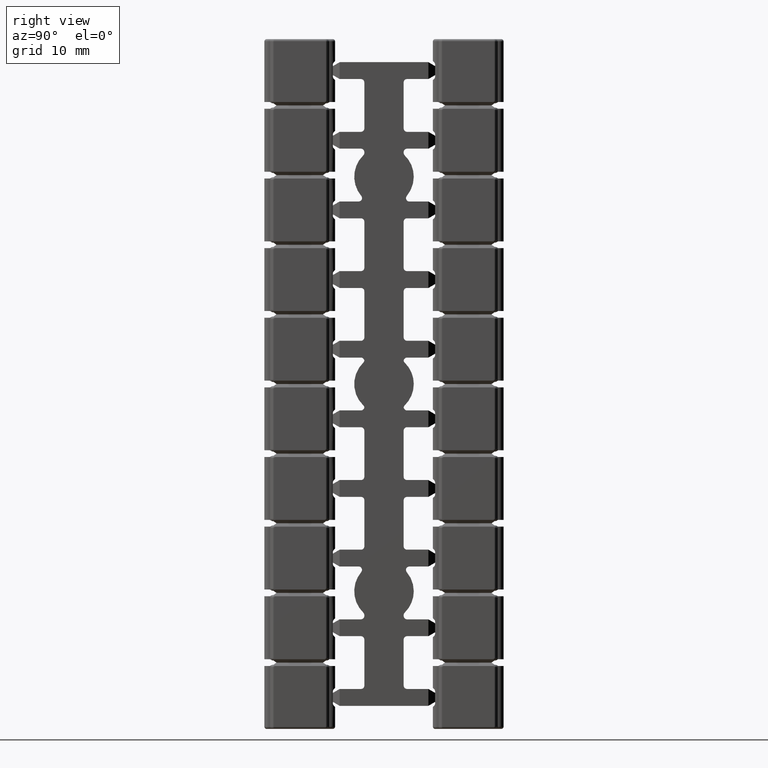
[diagram: clean part render]
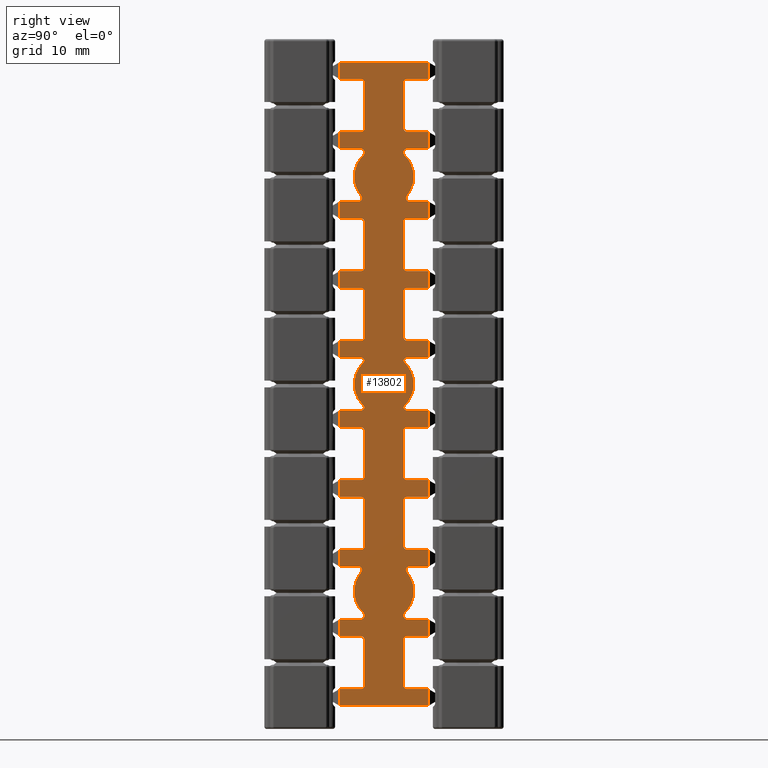
[diagram: same view with one face highlighted and labeled with its STEP entity id]
A machine part, right view. The second image highlights one B-rep face of the part: STEP entity #13802.
In plain terms, the highlighted planar face has unit normal (1, 0, -0).
Its self-contained STEP definition (entity closure, byte-faithful):
#2884 = CARTESIAN_POINT ( 'NONE',  ( 48.10237692440196600, 102.7600000000000900, -7.628800931457856600 ) ) ;
#2960 = CARTESIAN_POINT ( 'NONE',  ( 48.10237692440209400, 98.08283370471531300, 27.56441940752511500 ) ) ;
#2964 = CARTESIAN_POINT ( 'NONE',  ( 48.10237692440213700, 98.15334318072062600, 27.37119906854226800 ) ) ;
#2981 = CARTESIAN_POINT ( 'NONE',  ( 48.10237692440214400, 97.85334318072084200, -5.428800931457736600 ) ) ;
#2992 = CARTESIAN_POINT ( 'NONE',  ( 48.10237692440214400, 97.85334318072084200, -5.728800931457736400 ) ) ;
#2993 = CIRCLE ( 'NONE', #3008, 0.2999999999999947200 ) ;
#3008 = AXIS2_PLACEMENT_3D ( 'NONE', #2992, #3043, #3042 ) ;
#3042 = DIRECTION ( 'NONE',  ( -2.312964634635783600E-014, 1.000000000000000000, 0.0000000000000000000 ) ) ;
#3043 = DIRECTION ( 'NONE',  ( -1.000000000000000000, -2.516302184933418300E-014, 0.0000000000000000000 ) ) ;
#3051 = CIRCLE ( 'NONE', #3089, 0.2999999999999947200 ) ;
#3075 = DIRECTION ( 'NONE',  ( -2.312964634635783600E-014, 1.000000000000000000, 0.0000000000000000000 ) ) ;
#3076 = DIRECTION ( 'NONE',  ( -1.000000000000000000, -2.516302184933418300E-014, 0.0000000000000000000 ) ) ;
#3077 = CARTESIAN_POINT ( 'NONE',  ( 48.10237692440214400, 97.85334318072062800, 27.37119906854226800 ) ) ;
#3083 = CARTESIAN_POINT ( 'NONE',  ( 48.10237692440213700, 98.15334318072082500, -5.728800931457736400 ) ) ;
#3089 = AXIS2_PLACEMENT_3D ( 'NONE', #3077, #3076, #3075 ) ;
#3123 = DIRECTION ( 'NONE',  ( 2.618450529776313000E-014, -1.000000000000000000, 0.0000000000000000000 ) ) ;
#3124 = DIRECTION ( 'NONE',  ( 1.000000000000000000, 2.567390744445676100E-014, -0.0000000000000000000 ) ) ;
#3125 = CARTESIAN_POINT ( 'NONE',  ( 48.10237692440203700, 100.1100000000000800, -7.628800931457856600 ) ) ;
#3126 = AXIS2_PLACEMENT_3D ( 'NONE', #3125, #3124, #3123 ) ;
#3127 = CIRCLE ( 'NONE', #3126, 2.649999999999999500 ) ;
#3174 = CIRCLE ( 'NONE', #3211, 2.649999999999999500 ) ;
#3177 = CARTESIAN_POINT ( 'NONE',  ( 48.10237692440198700, 101.9515254237289100, 8.915606217547900100 ) ) ;
#3196 = CARTESIAN_POINT ( 'NONE',  ( 48.10237692440198700, 101.9515254237289100, -9.534393782452099200 ) ) ;
#3197 = DIRECTION ( 'NONE',  ( -2.618450529776313000E-014, 1.000000000000000000, 0.0000000000000000000 ) ) ;
#3198 = DIRECTION ( 'NONE',  ( 1.000000000000000000, 2.567390744445676100E-014, 0.0000000000000000000 ) ) ;
#3199 = CARTESIAN_POINT ( 'NONE',  ( 48.10237692440203700, 100.1100000000000800, 29.27119906854213800 ) ) ;
#3203 = CARTESIAN_POINT ( 'NONE',  ( 48.10237692440198000, 102.1371662952850300, 27.56441940752530000 ) ) ;
#3209 = CARTESIAN_POINT ( 'NONE',  ( 48.10237692440196600, 102.7600000000000900, 29.27119906854213800 ) ) ;
#3211 = AXIS2_PLACEMENT_3D ( 'NONE', #3199, #3198, #3197 ) ;
#3279 = DIRECTION ( 'NONE',  ( -2.618450529776313000E-014, 1.000000000000000000, 0.0000000000000000000 ) ) ;
#3280 = DIRECTION ( 'NONE',  ( 1.000000000000000000, 2.567390744445676100E-014, 0.0000000000000000000 ) ) ;
#3281 = CARTESIAN_POINT ( 'NONE',  ( 48.10237692440203700, 100.1100000000000800, 10.82119906854214100 ) ) ;
#3290 = CIRCLE ( 'NONE', #3304, 2.649999999999999500 ) ;
#3291 = CARTESIAN_POINT ( 'NONE',  ( 48.10237692440196600, 102.7600000000000900, 10.82119906854214100 ) ) ;
#3304 = AXIS2_PLACEMENT_3D ( 'NONE', #3281, #3280, #3279 ) ;
#9190 = DIRECTION ( 'NONE',  ( -2.618450529776313000E-014, 1.000000000000000000, 0.0000000000000000000 ) ) ;
#9376 = ORIENTED_EDGE ( 'NONE', *, *, #16622, .T. ) ;
#9380 = ORIENTED_EDGE ( 'NONE', *, *, #16804, .T. ) ;
#11648 = VERTEX_POINT ( 'NONE', #37262 ) ;
#11649 = EDGE_CURVE ( 'NONE', #11648, #11725, #37259, .T. ) ;
#11654 = EDGE_CURVE ( 'NONE', #11718, #11739, #37323, .T. ) ;
#11664 = VERTEX_POINT ( 'NONE', #37396 ) ;
#11709 = VERTEX_POINT ( 'NONE', #37111 ) ;
#11710 = VERTEX_POINT ( 'NONE', #37074 ) ;
#11711 = EDGE_CURVE ( 'NONE', #11710, #17062, #33296, .T. ) ;
#11716 = EDGE_CURVE ( 'NONE', #11664, #11747, #37549, .T. ) ;
#11718 = VERTEX_POINT ( 'NONE', #37550 ) ;
#11721 = VERTEX_POINT ( 'NONE', #37548 ) ;
#11725 = VERTEX_POINT ( 'NONE', #37534 ) ;
#11739 = VERTEX_POINT ( 'NONE', #37528 ) ;
#11747 = VERTEX_POINT ( 'NONE', #37558 ) ;
#11789 = EDGE_CURVE ( 'NONE', #11709, #11721, #37721, .T. ) ;
#13764 = ORIENTED_EDGE ( 'NONE', *, *, #11711, .T. ) ;
#13765 = EDGE_LOOP ( 'NONE', ( #13764, #13807, #13818, #13809, #13808, #13815, #13814, #13813, #13871, #13869, #13795, #13799, #13812, #13870, #13861, #13858, #13865, #13796, #13862, #13854, #13852, #13853, #13837, #13836, #13843, #13897, #13840, #13845, #13848, #13904, #13903, #13909, #13902, #13886, #13896, #13892, #13895, #13872, #13875, #13878, #13877, #13944, #13948, #13943, #13926, #13950, #13932, #13925, #13927, #13915, #13938, #13920, #13923, #13916, #13989, #13987, #13991, #13856, #13974, #13972, #13980, #13983, #13956, #13959, #13962, #13955, #13964, #14025, #14027, #13957, #14031, #13953, #13958, #14014, #14017, #14020, #14012, #13960, #14001, #13999, #14005, #14002, #14008, #14069, #14007, #14004, #13995, #9376, #13997, #13996, #14062, #13994, #14064, #14067, #9380, #14051, #14068, #14053, #14052, #14058, #14040, #14044, #14043, #14047, #14050, #14039, #14038, #14109, #14106, #14110, #14034, #14033, #14092, #14091, #14100, #14041, #14103, #14101, #14081, #14084, #14099, #14096, #14142, #14089, #14145, #14143, #14076, #14144, #14078 ) ) ;
#13767 = VERTEX_POINT ( 'NONE', #45033 ) ;
#13775 = EDGE_CURVE ( 'NONE', #13797, #13859, #45071, .T. ) ;
#13778 = VERTEX_POINT ( 'NONE', #45073 ) ;
#13782 = VERTEX_POINT ( 'NONE', #45162 ) ;
#13793 = VERTEX_POINT ( 'NONE', #45155 ) ;
#13794 = VERTEX_POINT ( 'NONE', #45163 ) ;
#13795 = ORIENTED_EDGE ( 'NONE', *, *, #13868, .T. ) ;
#13796 = ORIENTED_EDGE ( 'NONE', *, *, #13866, .T. ) ;
#13797 = VERTEX_POINT ( 'NONE', #45152 ) ;
#13798 = VERTEX_POINT ( 'NONE', #45159 ) ;
#13799 = ORIENTED_EDGE ( 'NONE', *, *, #13801, .T. ) ;
#13800 = EDGE_CURVE ( 'NONE', #13793, #11664, #45158, .T. ) ;
#13801 = EDGE_CURVE ( 'NONE', #13826, #13793, #45131, .T. ) ;
#13802 = ADVANCED_FACE ( 'NONE', ( #45161 ), #45149, .T. ) ;
#13803 = EDGE_CURVE ( 'NONE', #17062, #15725, #45132, .T. ) ;
#13804 = EDGE_CURVE ( 'NONE', #15721, #13805, #45201, .T. ) ;
#13805 = VERTEX_POINT ( 'NONE', #45144 ) ;
#13806 = EDGE_CURVE ( 'NONE', #11648, #11739, #45185, .T. ) ;
#13807 = ORIENTED_EDGE ( 'NONE', *, *, #13803, .T. ) ;
#13808 = ORIENTED_EDGE ( 'NONE', *, *, #13810, .T. ) ;
#13809 = ORIENTED_EDGE ( 'NONE', *, *, #13804, .T. ) ;
#13810 = EDGE_CURVE ( 'NONE', #13805, #16674, #45195, .T. ) ;
#13811 = EDGE_CURVE ( 'NONE', #16671, #11718, #45172, .T. ) ;
#13812 = ORIENTED_EDGE ( 'NONE', *, *, #13800, .T. ) ;
#13813 = ORIENTED_EDGE ( 'NONE', *, *, #11654, .T. ) ;
#13814 = ORIENTED_EDGE ( 'NONE', *, *, #13811, .T. ) ;
#13815 = ORIENTED_EDGE ( 'NONE', *, *, #16673, .T. ) ;
#13816 = VERTEX_POINT ( 'NONE', #45179 ) ;
#13818 = ORIENTED_EDGE ( 'NONE', *, *, #15724, .T. ) ;
#13822 = VERTEX_POINT ( 'NONE', #45168 ) ;
#13823 = EDGE_CURVE ( 'NONE', #13822, #13767, #45173, .T. ) ;
#13826 = VERTEX_POINT ( 'NONE', #45239 ) ;
#13829 = EDGE_CURVE ( 'NONE', #13778, #13782, #45227, .T. ) ;
#13831 = VERTEX_POINT ( 'NONE', #45214 ) ;
#13832 = VERTEX_POINT ( 'NONE', #45210 ) ;
#13833 = VERTEX_POINT ( 'NONE', #45212 ) ;
#13834 = VERTEX_POINT ( 'NONE', #45202 ) ;
#13835 = VERTEX_POINT ( 'NONE', #45229 ) ;
#13836 = ORIENTED_EDGE ( 'NONE', *, *, #13838, .T. ) ;
#13837 = ORIENTED_EDGE ( 'NONE', *, *, #13839, .T. ) ;
#13838 = EDGE_CURVE ( 'NONE', #13833, #13831, #45299, .T. ) ;
#13839 = EDGE_CURVE ( 'NONE', #13835, #13833, #45290, .T. ) ;
#13840 = ORIENTED_EDGE ( 'NONE', *, *, #13898, .T. ) ;
#13841 = VERTEX_POINT ( 'NONE', #45206 ) ;
#13842 = VERTEX_POINT ( 'NONE', #45298 ) ;
#13843 = ORIENTED_EDGE ( 'NONE', *, *, #13844, .T. ) ;
#13844 = EDGE_CURVE ( 'NONE', #13831, #13849, #45285, .T. ) ;
#13845 = ORIENTED_EDGE ( 'NONE', *, *, #13900, .T. ) ;
#13846 = VERTEX_POINT ( 'NONE', #45283 ) ;
#13847 = EDGE_CURVE ( 'NONE', #13849, #13846, #45284, .T. ) ;
#13848 = ORIENTED_EDGE ( 'NONE', *, *, #15661, .T. ) ;
#13849 = VERTEX_POINT ( 'NONE', #45276 ) ;
#13850 = EDGE_CURVE ( 'NONE', #13867, #13863, #45277, .T. ) ;
#13851 = VERTEX_POINT ( 'NONE', #45271 ) ;
#13852 = ORIENTED_EDGE ( 'NONE', *, *, #13855, .T. ) ;
#13853 = ORIENTED_EDGE ( 'NONE', *, *, #13911, .T. ) ;
#13854 = ORIENTED_EDGE ( 'NONE', *, *, #13857, .T. ) ;
#13855 = EDGE_CURVE ( 'NONE', #13798, #13794, #45347, .T. ) ;
#13856 = ORIENTED_EDGE ( 'NONE', *, *, #13966, .T. ) ;
#13857 = EDGE_CURVE ( 'NONE', #13863, #13798, #45342, .T. ) ;
#13858 = ORIENTED_EDGE ( 'NONE', *, *, #13775, .T. ) ;
#13859 = VERTEX_POINT ( 'NONE', #45345 ) ;
#13860 = EDGE_CURVE ( 'NONE', #13797, #11747, #45329, .T. ) ;
#13861 = ORIENTED_EDGE ( 'NONE', *, *, #13860, .F. ) ;
#13862 = ORIENTED_EDGE ( 'NONE', *, *, #13850, .T. ) ;
#13863 = VERTEX_POINT ( 'NONE', #45332 ) ;
#13864 = EDGE_CURVE ( 'NONE', #13859, #13816, #45309, .T. ) ;
#13865 = ORIENTED_EDGE ( 'NONE', *, *, #13864, .T. ) ;
#13866 = EDGE_CURVE ( 'NONE', #13816, #13867, #45304, .T. ) ;
#13867 = VERTEX_POINT ( 'NONE', #45348 ) ;
#13868 = EDGE_CURVE ( 'NONE', #11725, #13826, #45334, .T. ) ;
#13869 = ORIENTED_EDGE ( 'NONE', *, *, #11649, .T. ) ;
#13870 = ORIENTED_EDGE ( 'NONE', *, *, #11716, .T. ) ;
#13871 = ORIENTED_EDGE ( 'NONE', *, *, #13806, .F. ) ;
#13872 = ORIENTED_EDGE ( 'NONE', *, *, #13876, .T. ) ;
#13873 = EDGE_CURVE ( 'NONE', #13832, #13891, #45399, .T. ) ;
#13874 = VERTEX_POINT ( 'NONE', #45393 ) ;
#13875 = ORIENTED_EDGE ( 'NONE', *, *, #13879, .T. ) ;
#13876 = EDGE_CURVE ( 'NONE', #13891, #13894, #45385, .T. ) ;
#13877 = ORIENTED_EDGE ( 'NONE', *, *, #13880, .T. ) ;
#13878 = ORIENTED_EDGE ( 'NONE', *, *, #13882, .T. ) ;
#13879 = EDGE_CURVE ( 'NONE', #13894, #13951, #45314, .T. ) ;
#13880 = EDGE_CURVE ( 'NONE', #13874, #13834, #45388, .T. ) ;
#13881 = VERTEX_POINT ( 'NONE', #45300 ) ;
#13882 = EDGE_CURVE ( 'NONE', #13951, #13874, #45370, .T. ) ;
#13883 = VERTEX_POINT ( 'NONE', #45379 ) ;
#13884 = EDGE_CURVE ( 'NONE', #13905, #13906, #45368, .T. ) ;
#13885 = VERTEX_POINT ( 'NONE', #45356 ) ;
#13886 = ORIENTED_EDGE ( 'NONE', *, *, #13890, .T. ) ;
#13887 = EDGE_CURVE ( 'NONE', #13906, #13899, #45453, .T. ) ;
#13888 = EDGE_CURVE ( 'NONE', #13885, #13832, #45354, .T. ) ;
#13889 = VERTEX_POINT ( 'NONE', #45446 ) ;
#13890 = EDGE_CURVE ( 'NONE', #13899, #13908, #45444, .T. ) ;
#13891 = VERTEX_POINT ( 'NONE', #45364 ) ;
#13892 = ORIENTED_EDGE ( 'NONE', *, *, #13888, .T. ) ;
#13893 = EDGE_CURVE ( 'NONE', #13908, #13885, #45415, .T. ) ;
#13894 = VERTEX_POINT ( 'NONE', #45418 ) ;
#13895 = ORIENTED_EDGE ( 'NONE', *, *, #13873, .T. ) ;
#13896 = ORIENTED_EDGE ( 'NONE', *, *, #13893, .T. ) ;
#13897 = ORIENTED_EDGE ( 'NONE', *, *, #13847, .T. ) ;
#13898 = EDGE_CURVE ( 'NONE', #13846, #13842, #45407, .T. ) ;
#13899 = VERTEX_POINT ( 'NONE', #45427 ) ;
#13900 = EDGE_CURVE ( 'NONE', #13842, #15607, #45406, .T. ) ;
#13901 = EDGE_CURVE ( 'NONE', #15608, #13910, #45420, .T. ) ;
#13902 = ORIENTED_EDGE ( 'NONE', *, *, #13887, .T. ) ;
#13903 = ORIENTED_EDGE ( 'NONE', *, *, #13907, .T. ) ;
#13904 = ORIENTED_EDGE ( 'NONE', *, *, #13901, .T. ) ;
#13905 = VERTEX_POINT ( 'NONE', #45358 ) ;
#13906 = VERTEX_POINT ( 'NONE', #45506 ) ;
#13907 = EDGE_CURVE ( 'NONE', #13910, #13905, #45494, .T. ) ;
#13908 = VERTEX_POINT ( 'NONE', #45496 ) ;
#13909 = ORIENTED_EDGE ( 'NONE', *, *, #13884, .T. ) ;
#13910 = VERTEX_POINT ( 'NONE', #45498 ) ;
#13911 = EDGE_CURVE ( 'NONE', #13794, #13835, #45514, .T. ) ;
#13913 = EDGE_CURVE ( 'NONE', #13928, #13946, #45512, .T. ) ;
#13914 = EDGE_CURVE ( 'NONE', #13918, #13917, #45544, .T. ) ;
#13915 = ORIENTED_EDGE ( 'NONE', *, *, #13913, .T. ) ;
#13916 = ORIENTED_EDGE ( 'NONE', *, *, #13914, .T. ) ;
#13917 = VERTEX_POINT ( 'NONE', #45545 ) ;
#13918 = VERTEX_POINT ( 'NONE', #45551 ) ;
#13919 = EDGE_CURVE ( 'NONE', #13939, #13937, #45536, .T. ) ;
#13920 = ORIENTED_EDGE ( 'NONE', *, *, #13919, .T. ) ;
#13921 = EDGE_CURVE ( 'NONE', #13937, #13918, #45548, .T. ) ;
#13922 = EDGE_CURVE ( 'NONE', #13934, #13931, #45538, .T. ) ;
#13923 = ORIENTED_EDGE ( 'NONE', *, *, #13921, .T. ) ;
#13924 = EDGE_CURVE ( 'NONE', #13881, #13942, #45608, .T. ) ;
#13925 = ORIENTED_EDGE ( 'NONE', *, *, #13933, .T. ) ;
#13926 = ORIENTED_EDGE ( 'NONE', *, *, #13924, .T. ) ;
#13927 = ORIENTED_EDGE ( 'NONE', *, *, #13936, .T. ) ;
#13928 = VERTEX_POINT ( 'NONE', #45539 ) ;
#13929 = VERTEX_POINT ( 'NONE', #45599 ) ;
#13930 = EDGE_CURVE ( 'NONE', #13841, #13949, #45600, .T. ) ;
#13931 = VERTEX_POINT ( 'NONE', #45593 ) ;
#13932 = ORIENTED_EDGE ( 'NONE', *, *, #13930, .T. ) ;
#13933 = EDGE_CURVE ( 'NONE', #13949, #13929, #45583, .T. ) ;
#13934 = VERTEX_POINT ( 'NONE', #45521 ) ;
#13935 = EDGE_CURVE ( 'NONE', #13946, #13939, #45568, .T. ) ;
#13936 = EDGE_CURVE ( 'NONE', #13929, #13928, #45580, .T. ) ;
#13937 = VERTEX_POINT ( 'NONE', #45561 ) ;
#13938 = ORIENTED_EDGE ( 'NONE', *, *, #13935, .T. ) ;
#13939 = VERTEX_POINT ( 'NONE', #45560 ) ;
#13940 = EDGE_CURVE ( 'NONE', #13883, #13881, #45648, .T. ) ;
#13941 = EDGE_CURVE ( 'NONE', #13834, #13889, #45554, .T. ) ;
#13942 = VERTEX_POINT ( 'NONE', #45643 ) ;
#13943 = ORIENTED_EDGE ( 'NONE', *, *, #13940, .T. ) ;
#13944 = ORIENTED_EDGE ( 'NONE', *, *, #13941, .T. ) ;
#13945 = EDGE_CURVE ( 'NONE', #13889, #13883, #45636, .T. ) ;
#13946 = VERTEX_POINT ( 'NONE', #45633 ) ;
#13947 = EDGE_CURVE ( 'NONE', #13942, #13841, #45555, .T. ) ;
#13948 = ORIENTED_EDGE ( 'NONE', *, *, #13945, .T. ) ;
#13949 = VERTEX_POINT ( 'NONE', #45559 ) ;
#13950 = ORIENTED_EDGE ( 'NONE', *, *, #13947, .T. ) ;
#13951 = VERTEX_POINT ( 'NONE', #45571 ) ;
#13952 = EDGE_CURVE ( 'NONE', #16685, #13767, #45624, .T. ) ;
#13953 = ORIENTED_EDGE ( 'NONE', *, *, #13954, .T. ) ;
#13954 = EDGE_CURVE ( 'NONE', #13985, #14028, #45621, .T. ) ;
#13955 = ORIENTED_EDGE ( 'NONE', *, *, #15625, .T. ) ;
#13956 = ORIENTED_EDGE ( 'NONE', *, *, #13979, .T. ) ;
#13957 = ORIENTED_EDGE ( 'NONE', *, *, #16660, .T. ) ;
#13958 = ORIENTED_EDGE ( 'NONE', *, *, #14010, .T. ) ;
#13959 = ORIENTED_EDGE ( 'NONE', *, *, #13976, .T. ) ;
#13960 = ORIENTED_EDGE ( 'NONE', *, *, #13829, .T. ) ;
#13961 = EDGE_CURVE ( 'NONE', #15659, #13982, #45613, .T. ) ;
#13962 = ORIENTED_EDGE ( 'NONE', *, *, #13973, .T. ) ;
#13963 = VERTEX_POINT ( 'NONE', #45618 ) ;
#13964 = ORIENTED_EDGE ( 'NONE', *, *, #13961, .T. ) ;
#13965 = VERTEX_POINT ( 'NONE', #45628 ) ;
#13966 = EDGE_CURVE ( 'NONE', #13851, #13971, #45689, .T. ) ;
#13967 = VERTEX_POINT ( 'NONE', #45683 ) ;
#13968 = VERTEX_POINT ( 'NONE', #45680 ) ;
#13969 = VERTEX_POINT ( 'NONE', #45671 ) ;
#13970 = VERTEX_POINT ( 'NONE', #45678 ) ;
#13971 = VERTEX_POINT ( 'NONE', #45675 ) ;
#13972 = ORIENTED_EDGE ( 'NONE', *, *, #13975, .T. ) ;
#13973 = EDGE_CURVE ( 'NONE', #13978, #15626, #45673, .T. ) ;
#13974 = ORIENTED_EDGE ( 'NONE', *, *, #13977, .T. ) ;
#13975 = EDGE_CURVE ( 'NONE', #13969, #13967, #45665, .T. ) ;
#13976 = EDGE_CURVE ( 'NONE', #13968, #13978, #45666, .T. ) ;
#13977 = EDGE_CURVE ( 'NONE', #13971, #13969, #45747, .T. ) ;
#13978 = VERTEX_POINT ( 'NONE', #45745 ) ;
#13979 = EDGE_CURVE ( 'NONE', #13970, #13968, #45735, .T. ) ;
#13980 = ORIENTED_EDGE ( 'NONE', *, *, #13981, .T. ) ;
#13981 = EDGE_CURVE ( 'NONE', #13967, #13986, #45723, .T. ) ;
#13982 = VERTEX_POINT ( 'NONE', #45738 ) ;
#13983 = ORIENTED_EDGE ( 'NONE', *, *, #13984, .T. ) ;
#13984 = EDGE_CURVE ( 'NONE', #13986, #13970, #45736, .T. ) ;
#13985 = VERTEX_POINT ( 'NONE', #45717 ) ;
#13986 = VERTEX_POINT ( 'NONE', #45658 ) ;
#13987 = ORIENTED_EDGE ( 'NONE', *, *, #13922, .T. ) ;
#13988 = EDGE_CURVE ( 'NONE', #13917, #13934, #45714, .T. ) ;
#13989 = ORIENTED_EDGE ( 'NONE', *, *, #13988, .T. ) ;
#13990 = EDGE_CURVE ( 'NONE', #13931, #13851, #45809, .T. ) ;
#13991 = ORIENTED_EDGE ( 'NONE', *, *, #13990, .T. ) ;
#13992 = VERTEX_POINT ( 'NONE', #45706 ) ;
#13993 = EDGE_CURVE ( 'NONE', #16623, #16860, #45805, .T. ) ;
#13994 = ORIENTED_EDGE ( 'NONE', *, *, #15689, .T. ) ;
#13995 = ORIENTED_EDGE ( 'NONE', *, *, #13993, .F. ) ;
#13996 = ORIENTED_EDGE ( 'NONE', *, *, #14059, .T. ) ;
#13997 = ORIENTED_EDGE ( 'NONE', *, *, #14071, .T. ) ;
#13998 = VERTEX_POINT ( 'NONE', #45707 ) ;
#13999 = ORIENTED_EDGE ( 'NONE', *, *, #13823, .T. ) ;
#14000 = EDGE_CURVE ( 'NONE', #13782, #13822, #45798, .T. ) ;
#14001 = ORIENTED_EDGE ( 'NONE', *, *, #14000, .T. ) ;
#14002 = ORIENTED_EDGE ( 'NONE', *, *, #16684, .T. ) ;
#14003 = EDGE_CURVE ( 'NONE', #16682, #14013, #45786, .T. ) ;
#14004 = ORIENTED_EDGE ( 'NONE', *, *, #16782, .T. ) ;
#14005 = ORIENTED_EDGE ( 'NONE', *, *, #13952, .F. ) ;
#14006 = VERTEX_POINT ( 'NONE', #45708 ) ;
#14007 = ORIENTED_EDGE ( 'NONE', *, *, #14070, .T. ) ;
#14008 = ORIENTED_EDGE ( 'NONE', *, *, #14003, .T. ) ;
#14009 = EDGE_CURVE ( 'NONE', #14013, #14006, #45781, .T. ) ;
#14010 = EDGE_CURVE ( 'NONE', #14028, #13965, #45761, .T. ) ;
#14011 = EDGE_CURVE ( 'NONE', #13965, #14024, #45754, .T. ) ;
#14012 = ORIENTED_EDGE ( 'NONE', *, *, #14021, .T. ) ;
#14013 = VERTEX_POINT ( 'NONE', #45796 ) ;
#14014 = ORIENTED_EDGE ( 'NONE', *, *, #14011, .T. ) ;
#14015 = EDGE_CURVE ( 'NONE', #14024, #14029, #45771, .T. ) ;
#14016 = EDGE_CURVE ( 'NONE', #16799, #14054, #45844, .T. ) ;
#14017 = ORIENTED_EDGE ( 'NONE', *, *, #14015, .T. ) ;
#14018 = EDGE_CURVE ( 'NONE', #14029, #14022, #45847, .T. ) ;
#14019 = VERTEX_POINT ( 'NONE', #45832 ) ;
#14020 = ORIENTED_EDGE ( 'NONE', *, *, #14018, .T. ) ;
#14021 = EDGE_CURVE ( 'NONE', #14022, #13778, #45830, .T. ) ;
#14022 = VERTEX_POINT ( 'NONE', #45819 ) ;
#14023 = EDGE_CURVE ( 'NONE', #13982, #13963, #45821, .T. ) ;
#14024 = VERTEX_POINT ( 'NONE', #45855 ) ;
#14025 = ORIENTED_EDGE ( 'NONE', *, *, #14023, .T. ) ;
#14026 = EDGE_CURVE ( 'NONE', #13963, #16652, #45927, .T. ) ;
#14027 = ORIENTED_EDGE ( 'NONE', *, *, #14026, .T. ) ;
#14028 = VERTEX_POINT ( 'NONE', #45822 ) ;
#14029 = VERTEX_POINT ( 'NONE', #45928 ) ;
#14030 = EDGE_CURVE ( 'NONE', #16654, #13985, #45924, .T. ) ;
#14031 = ORIENTED_EDGE ( 'NONE', *, *, #14030, .T. ) ;
#14032 = EDGE_CURVE ( 'NONE', #14046, #15714, #45891, .T. ) ;
#14033 = ORIENTED_EDGE ( 'NONE', *, *, #15772, .T. ) ;
#14034 = ORIENTED_EDGE ( 'NONE', *, *, #14032, .T. ) ;
#14035 = EDGE_CURVE ( 'NONE', #14061, #16811, #45883, .T. ) ;
#14036 = EDGE_CURVE ( 'NONE', #16812, #16774, #45868, .T. ) ;
#14037 = EDGE_CURVE ( 'NONE', #16765, #14042, #44707, .T. ) ;
#14038 = ORIENTED_EDGE ( 'NONE', *, *, #16732, .T. ) ;
#14039 = ORIENTED_EDGE ( 'NONE', *, *, #14104, .T. ) ;
#14040 = ORIENTED_EDGE ( 'NONE', *, *, #16806, .T. ) ;
#14041 = ORIENTED_EDGE ( 'NONE', *, *, #16728, .T. ) ;
#14042 = VERTEX_POINT ( 'NONE', #44267 ) ;
#14043 = ORIENTED_EDGE ( 'NONE', *, *, #16814, .T. ) ;
#14044 = ORIENTED_EDGE ( 'NONE', *, *, #14036, .F. ) ;
#14045 = VERTEX_POINT ( 'NONE', #45059 ) ;
#14046 = VERTEX_POINT ( 'NONE', #45508 ) ;
#14047 = ORIENTED_EDGE ( 'NONE', *, *, #14037, .T. ) ;
#14048 = EDGE_CURVE ( 'NONE', #14042, #14045, #45877, .T. ) ;
#14049 = EDGE_CURVE ( 'NONE', #15776, #14094, #45060, .T. ) ;
#14050 = ORIENTED_EDGE ( 'NONE', *, *, #14048, .T. ) ;
#14051 = ORIENTED_EDGE ( 'NONE', *, *, #14066, .F. ) ;
#14052 = ORIENTED_EDGE ( 'NONE', *, *, #14055, .T. ) ;
#14053 = ORIENTED_EDGE ( 'NONE', *, *, #14016, .T. ) ;
#14054 = VERTEX_POINT ( 'NONE', #45979 ) ;
#14055 = EDGE_CURVE ( 'NONE', #14054, #14061, #45974, .T. ) ;
#14058 = ORIENTED_EDGE ( 'NONE', *, *, #14035, .T. ) ;
#14059 = EDGE_CURVE ( 'NONE', #14019, #13998, #45953, .T. ) ;
#14060 = EDGE_CURVE ( 'NONE', #13998, #15738, #45983, .T. ) ;
#14061 = VERTEX_POINT ( 'NONE', #45949 ) ;
#14062 = ORIENTED_EDGE ( 'NONE', *, *, #14060, .T. ) ;
#14063 = EDGE_CURVE ( 'NONE', #15562, #13992, #45938, .T. ) ;
#14064 = ORIENTED_EDGE ( 'NONE', *, *, #14063, .T. ) ;
#14065 = EDGE_CURVE ( 'NONE', #13992, #16800, #45940, .T. ) ;
#14066 = EDGE_CURVE ( 'NONE', #16781, #16801, #46024, .T. ) ;
#14067 = ORIENTED_EDGE ( 'NONE', *, *, #14065, .T. ) ;
#14068 = ORIENTED_EDGE ( 'NONE', *, *, #16785, .T. ) ;
#14069 = ORIENTED_EDGE ( 'NONE', *, *, #14009, .T. ) ;
#14070 = EDGE_CURVE ( 'NONE', #14006, #16865, #46021, .T. ) ;
#14071 = EDGE_CURVE ( 'NONE', #16620, #14019, #45999, .T. ) ;
#14072 = EDGE_CURVE ( 'NONE', #14087, #11709, #46001, .T. ) ;
#14073 = EDGE_CURVE ( 'NONE', #11710, #11721, #46083, .T. ) ;
#14076 = ORIENTED_EDGE ( 'NONE', *, *, #14072, .T. ) ;
#14078 = ORIENTED_EDGE ( 'NONE', *, *, #14073, .F. ) ;
#14080 = VERTEX_POINT ( 'NONE', #45988 ) ;
#14081 = ORIENTED_EDGE ( 'NONE', *, *, #14098, .T. ) ;
#14082 = EDGE_CURVE ( 'NONE', #14107, #14080, #46069, .T. ) ;
#14083 = EDGE_CURVE ( 'NONE', #17031, #14088, #46075, .T. ) ;
#14084 = ORIENTED_EDGE ( 'NONE', *, *, #14082, .T. ) ;
#14085 = EDGE_CURVE ( 'NONE', #14080, #17077, #46061, .T. ) ;
#14086 = EDGE_CURVE ( 'NONE', #17144, #17084, #46050, .T. ) ;
#14087 = VERTEX_POINT ( 'NONE', #46058 ) ;
#14088 = VERTEX_POINT ( 'NONE', #46046 ) ;
#14089 = ORIENTED_EDGE ( 'NONE', *, *, #17100, .T. ) ;
#14091 = ORIENTED_EDGE ( 'NONE', *, *, #14095, .T. ) ;
#14092 = ORIENTED_EDGE ( 'NONE', *, *, #14049, .T. ) ;
#14093 = VERTEX_POINT ( 'NONE', #46038 ) ;
#14094 = VERTEX_POINT ( 'NONE', #46000 ) ;
#14095 = EDGE_CURVE ( 'NONE', #14094, #14093, #46136, .T. ) ;
#14096 = ORIENTED_EDGE ( 'NONE', *, *, #17132, .T. ) ;
#14097 = EDGE_CURVE ( 'NONE', #14093, #16734, #46033, .T. ) ;
#14098 = EDGE_CURVE ( 'NONE', #16825, #14107, #46035, .T. ) ;
#14099 = ORIENTED_EDGE ( 'NONE', *, *, #14085, .T. ) ;
#14100 = ORIENTED_EDGE ( 'NONE', *, *, #14097, .T. ) ;
#14101 = ORIENTED_EDGE ( 'NONE', *, *, #16795, .T. ) ;
#14102 = EDGE_CURVE ( 'NONE', #16794, #16735, #46109, .T. ) ;
#14103 = ORIENTED_EDGE ( 'NONE', *, *, #14102, .F. ) ;
#14104 = EDGE_CURVE ( 'NONE', #14045, #16847, #46128, .T. ) ;
#14105 = EDGE_CURVE ( 'NONE', #16790, #14046, #46087, .T. ) ;
#14106 = ORIENTED_EDGE ( 'NONE', *, *, #16831, .T. ) ;
#14107 = VERTEX_POINT ( 'NONE', #46102 ) ;
#14108 = EDGE_CURVE ( 'NONE', #16762, #16848, #46180, .T. ) ;
#14109 = ORIENTED_EDGE ( 'NONE', *, *, #14108, .F. ) ;
#14110 = ORIENTED_EDGE ( 'NONE', *, *, #14105, .T. ) ;
#14142 = ORIENTED_EDGE ( 'NONE', *, *, #14086, .F. ) ;
#14143 = ORIENTED_EDGE ( 'NONE', *, *, #14146, .T. ) ;
#14144 = ORIENTED_EDGE ( 'NONE', *, *, #11789, .T. ) ;
#14145 = ORIENTED_EDGE ( 'NONE', *, *, #14083, .T. ) ;
#14146 = EDGE_CURVE ( 'NONE', #14088, #14087, #46287, .T. ) ;
#15562 = VERTEX_POINT ( 'NONE', #2884 ) ;
#15607 = VERTEX_POINT ( 'NONE', #2960 ) ;
#15608 = VERTEX_POINT ( 'NONE', #2964 ) ;
#15625 = EDGE_CURVE ( 'NONE', #15626, #15659, #2993, .T. ) ;
#15626 = VERTEX_POINT ( 'NONE', #2981 ) ;
#15659 = VERTEX_POINT ( 'NONE', #3083 ) ;
#15661 = EDGE_CURVE ( 'NONE', #15607, #15608, #3051, .T. ) ;
#15689 = EDGE_CURVE ( 'NONE', #15738, #15562, #3127, .T. ) ;
#15714 = VERTEX_POINT ( 'NONE', #3177 ) ;
#15721 = VERTEX_POINT ( 'NONE', #3209 ) ;
#15724 = EDGE_CURVE ( 'NONE', #15725, #15721, #3174, .T. ) ;
#15725 = VERTEX_POINT ( 'NONE', #3203 ) ;
#15738 = VERTEX_POINT ( 'NONE', #3196 ) ;
#15772 = EDGE_CURVE ( 'NONE', #15714, #15776, #3290, .T. ) ;
#15776 = VERTEX_POINT ( 'NONE', #3291 ) ;
#16620 = VERTEX_POINT ( 'NONE', #26373 ) ;
#16622 = EDGE_CURVE ( 'NONE', #16623, #16620, #26382, .T. ) ;
#16623 = VERTEX_POINT ( 'NONE', #26413 ) ;
#16652 = VERTEX_POINT ( 'NONE', #26414 ) ;
#16654 = VERTEX_POINT ( 'NONE', #26467 ) ;
#16660 = EDGE_CURVE ( 'NONE', #16652, #16654, #26450, .T. ) ;
#16671 = VERTEX_POINT ( 'NONE', #26495 ) ;
#16673 = EDGE_CURVE ( 'NONE', #16674, #16671, #26497, .T. ) ;
#16674 = VERTEX_POINT ( 'NONE', #26480 ) ;
#16682 = VERTEX_POINT ( 'NONE', #26481 ) ;
#16684 = EDGE_CURVE ( 'NONE', #16685, #16682, #26520, .T. ) ;
#16685 = VERTEX_POINT ( 'NONE', #26521 ) ;
#16728 = EDGE_CURVE ( 'NONE', #16734, #16735, #26643, .T. ) ;
#16732 = EDGE_CURVE ( 'NONE', #16847, #16848, #26722, .T. ) ;
#16734 = VERTEX_POINT ( 'NONE', #26723 ) ;
#16735 = VERTEX_POINT ( 'NONE', #26691 ) ;
#16762 = VERTEX_POINT ( 'NONE', #26734 ) ;
#16765 = VERTEX_POINT ( 'NONE', #26736 ) ;
#16774 = VERTEX_POINT ( 'NONE', #26771 ) ;
#16781 = VERTEX_POINT ( 'NONE', #26761 ) ;
#16782 = EDGE_CURVE ( 'NONE', #16865, #16860, #26809, .T. ) ;
#16785 = EDGE_CURVE ( 'NONE', #16781, #16799, #26772, .T. ) ;
#16790 = VERTEX_POINT ( 'NONE', #26796 ) ;
#16794 = VERTEX_POINT ( 'NONE', #26805 ) ;
#16795 = EDGE_CURVE ( 'NONE', #16794, #16825, #26840, .T. ) ;
#16799 = VERTEX_POINT ( 'NONE', #26783 ) ;
#16800 = VERTEX_POINT ( 'NONE', #26835 ) ;
#16801 = VERTEX_POINT ( 'NONE', #26830 ) ;
#16804 = EDGE_CURVE ( 'NONE', #16800, #16801, #26818, .T. ) ;
#16806 = EDGE_CURVE ( 'NONE', #16811, #16774, #26812, .T. ) ;
#16811 = VERTEX_POINT ( 'NONE', #26790 ) ;
#16812 = VERTEX_POINT ( 'NONE', #26814 ) ;
#16814 = EDGE_CURVE ( 'NONE', #16812, #16765, #26856, .T. ) ;
#16825 = VERTEX_POINT ( 'NONE', #26892 ) ;
#16831 = EDGE_CURVE ( 'NONE', #16762, #16790, #26885, .T. ) ;
#16847 = VERTEX_POINT ( 'NONE', #26911 ) ;
#16848 = VERTEX_POINT ( 'NONE', #26915 ) ;
#16860 = VERTEX_POINT ( 'NONE', #26896 ) ;
#16865 = VERTEX_POINT ( 'NONE', #26930 ) ;
#17031 = VERTEX_POINT ( 'NONE', #27209 ) ;
#17062 = VERTEX_POINT ( 'NONE', #27239 ) ;
#17077 = VERTEX_POINT ( 'NONE', #27294 ) ;
#17084 = VERTEX_POINT ( 'NONE', #27284 ) ;
#17100 = EDGE_CURVE ( 'NONE', #17144, #17031, #27368, .T. ) ;
#17132 = EDGE_CURVE ( 'NONE', #17077, #17084, #27452, .T. ) ;
#17144 = VERTEX_POINT ( 'NONE', #27458 ) ;
#26366 = VECTOR ( 'NONE', #26412, 1000.000000000000000 ) ;
#26367 = CARTESIAN_POINT ( 'NONE',  ( 48.10237692440219300, 95.56000000000013000, -10.12880093145773400 ) ) ;
#26373 = CARTESIAN_POINT ( 'NONE',  ( 48.10237692440203000, 102.1600000000001000, -10.12880093145773600 ) ) ;
#26382 = LINE ( 'NONE', #26367, #26366 ) ;
#26412 = DIRECTION ( 'NONE',  ( 2.516302184933418300E-014, -1.000000000000000000, 3.812579068080936900E-016 ) ) ;
#26413 = CARTESIAN_POINT ( 'NONE',  ( 48.10237692440198000, 104.0600000000000400, -10.12880093145773800 ) ) ;
#26414 = CARTESIAN_POINT ( 'NONE',  ( 48.10237692440208000, 98.36000000000009900, -9.750121275017518100 ) ) ;
#26442 = DIRECTION ( 'NONE',  ( -0.0000000000000000000, 2.421952497000778300E-016, -1.000000000000000000 ) ) ;
#26443 = VECTOR ( 'NONE', #26442, 1000.000000000000000 ) ;
#26444 = CARTESIAN_POINT ( 'NONE',  ( 48.10237692440208000, 98.36000000000009900, -17.82880093145773200 ) ) ;
#26450 = LINE ( 'NONE', #26444, #26443 ) ;
#26467 = CARTESIAN_POINT ( 'NONE',  ( 48.10237692440208000, 98.36000000000009900, -9.828800931457735100 ) ) ;
#26477 = DIRECTION ( 'NONE',  ( 0.0000000000000000000, -2.421952497000778300E-016, 1.000000000000000000 ) ) ;
#26478 = VECTOR ( 'NONE', #26477, 1000.000000000000000 ) ;
#26480 = CARTESIAN_POINT ( 'NONE',  ( 48.10237692440198700, 101.8600000000000800, 31.39251941210177700 ) ) ;
#26481 = CARTESIAN_POINT ( 'NONE',  ( 48.10237692440203000, 102.1600000000001000, -16.32880093145773900 ) ) ;
#26495 = CARTESIAN_POINT ( 'NONE',  ( 48.10237692440198700, 101.8600000000000800, 31.47119906854226200 ) ) ;
#26496 = CARTESIAN_POINT ( 'NONE',  ( 48.10237692440198700, 101.8600000000001000, -17.82880093145773200 ) ) ;
#26497 = LINE ( 'NONE', #26496, #26478 ) ;
#26517 = DIRECTION ( 'NONE',  ( 2.516302184933418300E-014, -1.000000000000000000, 3.812579068080936900E-016 ) ) ;
#26518 = VECTOR ( 'NONE', #26517, 1000.000000000000000 ) ;
#26519 = CARTESIAN_POINT ( 'NONE',  ( 48.10237692440219300, 95.56000000000013000, -16.32880093145773500 ) ) ;
#26520 = LINE ( 'NONE', #26519, #26518 ) ;
#26521 = CARTESIAN_POINT ( 'NONE',  ( 48.10237692440198000, 104.0600000000000400, -16.32880093145773900 ) ) ;
#26643 = LINE ( 'NONE', #26690, #26689 ) ;
#26688 = DIRECTION ( 'NONE',  ( -2.516302184933418300E-014, 1.000000000000000000, 0.0000000000000000000 ) ) ;
#26689 = VECTOR ( 'NONE', #26688, 1000.000000000000000 ) ;
#26690 = CARTESIAN_POINT ( 'NONE',  ( 48.10237692440219300, 95.56000000000013000, 13.17119906854226300 ) ) ;
#26691 = CARTESIAN_POINT ( 'NONE',  ( 48.10237692440198700, 104.0600000000000400, 13.17119906854226700 ) ) ;
#26719 = DIRECTION ( 'NONE',  ( -2.516302184933418300E-014, 1.000000000000000000, 0.0000000000000000000 ) ) ;
#26720 = VECTOR ( 'NONE', #26719, 1000.000000000000000 ) ;
#26721 = CARTESIAN_POINT ( 'NONE',  ( 48.10237692440219300, 95.56000000000013000, 6.971199068542262900 ) ) ;
#26722 = LINE ( 'NONE', #26721, #26720 ) ;
#26723 = CARTESIAN_POINT ( 'NONE',  ( 48.10237692440203000, 102.1600000000001000, 13.17119906854226300 ) ) ;
#26734 = CARTESIAN_POINT ( 'NONE',  ( 48.10237692440198000, 104.0600000000000400, 8.471199068542260200 ) ) ;
#26736 = CARTESIAN_POINT ( 'NONE',  ( 48.10237692440203000, 102.1600000000001000, 2.271199068542260900 ) ) ;
#26761 = CARTESIAN_POINT ( 'NONE',  ( 48.10237692440198000, 104.0600000000000400, -3.928800931457738800 ) ) ;
#26771 = CARTESIAN_POINT ( 'NONE',  ( 48.10237692440198700, 104.0600000000000400, 0.7711990685422658300 ) ) ;
#26772 = LINE ( 'NONE', #26804, #26803 ) ;
#26783 = CARTESIAN_POINT ( 'NONE',  ( 48.10237692440203000, 102.1600000000001000, -3.928800931457737900 ) ) ;
#26790 = CARTESIAN_POINT ( 'NONE',  ( 48.10237692440203000, 102.1600000000001000, 0.7711990685422622800 ) ) ;
#26796 = CARTESIAN_POINT ( 'NONE',  ( 48.10237692440203000, 102.1600000000001000, 8.471199068542262000 ) ) ;
#26802 = DIRECTION ( 'NONE',  ( 2.516302184933418300E-014, -1.000000000000000000, 3.812579068080936900E-016 ) ) ;
#26803 = VECTOR ( 'NONE', #26802, 1000.000000000000000 ) ;
#26804 = CARTESIAN_POINT ( 'NONE',  ( 48.10237692440219300, 95.56000000000013000, -3.928800931457735200 ) ) ;
#26805 = CARTESIAN_POINT ( 'NONE',  ( 48.10237692440198000, 104.0600000000000400, 14.67119906854226100 ) ) ;
#26806 = DIRECTION ( 'NONE',  ( -2.516302184933418300E-014, 1.000000000000000000, 0.0000000000000000000 ) ) ;
#26807 = VECTOR ( 'NONE', #26806, 1000.000000000000000 ) ;
#26808 = CARTESIAN_POINT ( 'NONE',  ( 48.10237692440219300, 95.56000000000013000, -11.62880093145773600 ) ) ;
#26809 = LINE ( 'NONE', #26808, #26807 ) ;
#26811 = CARTESIAN_POINT ( 'NONE',  ( 48.10237692440219300, 95.56000000000013000, 0.7711990685422622800 ) ) ;
#26812 = LINE ( 'NONE', #26811, #26868 ) ;
#26814 = CARTESIAN_POINT ( 'NONE',  ( 48.10237692440198000, 104.0600000000000400, 2.271199068542260500 ) ) ;
#26815 = DIRECTION ( 'NONE',  ( -2.516302184933418300E-014, 1.000000000000000000, 0.0000000000000000000 ) ) ;
#26816 = VECTOR ( 'NONE', #26815, 1000.000000000000000 ) ;
#26817 = CARTESIAN_POINT ( 'NONE',  ( 48.10237692440219300, 95.56000000000013000, -5.428800931457736600 ) ) ;
#26818 = LINE ( 'NONE', #26817, #26816 ) ;
#26830 = CARTESIAN_POINT ( 'NONE',  ( 48.10237692440198700, 104.0600000000000400, -5.428800931457733000 ) ) ;
#26835 = CARTESIAN_POINT ( 'NONE',  ( 48.10237692440202300, 102.3666568192793400, -5.428800931457736600 ) ) ;
#26837 = DIRECTION ( 'NONE',  ( 2.516302184933418300E-014, -1.000000000000000000, 3.812579068080936900E-016 ) ) ;
#26838 = VECTOR ( 'NONE', #26837, 1000.000000000000000 ) ;
#26839 = CARTESIAN_POINT ( 'NONE',  ( 48.10237692440219300, 95.56000000000013000, 14.67119906854226500 ) ) ;
#26840 = LINE ( 'NONE', #26839, #26838 ) ;
#26853 = DIRECTION ( 'NONE',  ( 2.516302184933418300E-014, -1.000000000000000000, 3.812579068080936900E-016 ) ) ;
#26854 = VECTOR ( 'NONE', #26853, 1000.000000000000000 ) ;
#26855 = CARTESIAN_POINT ( 'NONE',  ( 48.10237692440219300, 95.56000000000013000, 2.271199068542263600 ) ) ;
#26856 = LINE ( 'NONE', #26855, #26854 ) ;
#26867 = DIRECTION ( 'NONE',  ( -2.516302184933418300E-014, 1.000000000000000000, 0.0000000000000000000 ) ) ;
#26868 = VECTOR ( 'NONE', #26867, 1000.000000000000000 ) ;
#26882 = DIRECTION ( 'NONE',  ( 2.516302184933418300E-014, -1.000000000000000000, 3.812579068080936900E-016 ) ) ;
#26883 = VECTOR ( 'NONE', #26882, 1000.000000000000000 ) ;
#26884 = CARTESIAN_POINT ( 'NONE',  ( 48.10237692440219300, 95.56000000000013000, 8.471199068542263800 ) ) ;
#26885 = LINE ( 'NONE', #26884, #26883 ) ;
#26892 = CARTESIAN_POINT ( 'NONE',  ( 48.10237692440203000, 102.1600000000001000, 14.67119906854226300 ) ) ;
#26896 = CARTESIAN_POINT ( 'NONE',  ( 48.10237692440198700, 104.0600000000000400, -11.62880093145773200 ) ) ;
#26911 = CARTESIAN_POINT ( 'NONE',  ( 48.10237692440203000, 102.1600000000001000, 6.971199068542262900 ) ) ;
#26915 = CARTESIAN_POINT ( 'NONE',  ( 48.10237692440198700, 104.0600000000000400, 6.971199068542266500 ) ) ;
#26930 = CARTESIAN_POINT ( 'NONE',  ( 48.10237692440203000, 102.1600000000001000, -11.62880093145773600 ) ) ;
#27209 = CARTESIAN_POINT ( 'NONE',  ( 48.10237692440203000, 102.1600000000001000, 20.87119906854225700 ) ) ;
#27239 = CARTESIAN_POINT ( 'NONE',  ( 48.10237692440202300, 102.3666568192795400, 27.07119906854226300 ) ) ;
#27284 = CARTESIAN_POINT ( 'NONE',  ( 48.10237692440198700, 104.0600000000000400, 19.37119906854226400 ) ) ;
#27294 = CARTESIAN_POINT ( 'NONE',  ( 48.10237692440203000, 102.1600000000001000, 19.37119906854226100 ) ) ;
#27365 = DIRECTION ( 'NONE',  ( 2.516302184933418300E-014, -1.000000000000000000, 3.812579068080936900E-016 ) ) ;
#27366 = VECTOR ( 'NONE', #27365, 1000.000000000000000 ) ;
#27367 = CARTESIAN_POINT ( 'NONE',  ( 48.10237692440219300, 95.56000000000013000, 20.87119906854226100 ) ) ;
#27368 = LINE ( 'NONE', #27367, #27366 ) ;
#27410 = DIRECTION ( 'NONE',  ( -2.516302184933418300E-014, 1.000000000000000000, 0.0000000000000000000 ) ) ;
#27411 = VECTOR ( 'NONE', #27410, 1000.000000000000000 ) ;
#27451 = CARTESIAN_POINT ( 'NONE',  ( 48.10237692440219300, 95.56000000000013000, 19.37119906854226100 ) ) ;
#27452 = LINE ( 'NONE', #27451, #27411 ) ;
#27458 = CARTESIAN_POINT ( 'NONE',  ( 48.10237692440198000, 104.0600000000000400, 20.87119906854225700 ) ) ;
#33120 = DIRECTION ( 'NONE',  ( 2.516302184933418300E-014, -1.000000000000000000, 3.812579068080936900E-016 ) ) ;
#33296 = LINE ( 'NONE', #33520, #33519 ) ;
#33519 = VECTOR ( 'NONE', #33120, 1000.000000000000000 ) ;
#33520 = CARTESIAN_POINT ( 'NONE',  ( 48.10237692440219300, 95.56000000000013000, 27.07119906854226700 ) ) ;
#37074 = CARTESIAN_POINT ( 'NONE',  ( 48.10237692440198000, 104.0600000000000400, 27.07119906854226300 ) ) ;
#37111 = CARTESIAN_POINT ( 'NONE',  ( 48.10237692440203000, 102.1600000000000800, 25.57119906854226300 ) ) ;
#37259 = LINE ( 'NONE', #37342, #37340 ) ;
#37262 = CARTESIAN_POINT ( 'NONE',  ( 48.10237692440198000, 104.0600000000000400, 33.27119906854226600 ) ) ;
#37320 = DIRECTION ( 'NONE',  ( -2.516302184933418300E-014, 1.000000000000000000, 0.0000000000000000000 ) ) ;
#37321 = VECTOR ( 'NONE', #37320, 1000.000000000000000 ) ;
#37322 = CARTESIAN_POINT ( 'NONE',  ( 48.10237692440219300, 95.56000000000013000, 31.77119906854226300 ) ) ;
#37323 = LINE ( 'NONE', #37322, #37321 ) ;
#37338 = DIRECTION ( 'NONE',  ( 2.516302184933418300E-014, -1.000000000000000000, 3.812579068080936900E-016 ) ) ;
#37340 = VECTOR ( 'NONE', #37338, 1000.000000000000000 ) ;
#37342 = CARTESIAN_POINT ( 'NONE',  ( 48.10237692440219300, 95.56000000000013000, 33.27119906854226600 ) ) ;
#37396 = CARTESIAN_POINT ( 'NONE',  ( 48.10237692440203000, 102.1600000000000800, 37.97119906854226200 ) ) ;
#37528 = CARTESIAN_POINT ( 'NONE',  ( 48.10237692440198700, 104.0600000000000400, 31.77119906854227000 ) ) ;
#37530 = DIRECTION ( 'NONE',  ( -2.516302184933418300E-014, 1.000000000000000000, 0.0000000000000000000 ) ) ;
#37531 = VECTOR ( 'NONE', #37530, 1000.000000000000000 ) ;
#37533 = CARTESIAN_POINT ( 'NONE',  ( 48.10237692440219300, 95.56000000000013000, 37.97119906854226200 ) ) ;
#37534 = CARTESIAN_POINT ( 'NONE',  ( 48.10237692440203000, 102.1600000000000800, 33.27119906854226600 ) ) ;
#37548 = CARTESIAN_POINT ( 'NONE',  ( 48.10237692440198700, 104.0600000000000400, 25.57119906854226700 ) ) ;
#37549 = LINE ( 'NONE', #37533, #37531 ) ;
#37550 = CARTESIAN_POINT ( 'NONE',  ( 48.10237692440203000, 102.1600000000000800, 31.77119906854226300 ) ) ;
#37558 = CARTESIAN_POINT ( 'NONE',  ( 48.10237692440198700, 104.0600000000000400, 37.97119906854226900 ) ) ;
#37715 = DIRECTION ( 'NONE',  ( -2.516302184933418300E-014, 1.000000000000000000, 0.0000000000000000000 ) ) ;
#37717 = VECTOR ( 'NONE', #37715, 1000.000000000000000 ) ;
#37718 = CARTESIAN_POINT ( 'NONE',  ( 48.10237692440219300, 95.56000000000013000, 25.57119906854226300 ) ) ;
#37721 = LINE ( 'NONE', #37718, #37717 ) ;
#43472 = DIRECTION ( 'NONE',  ( -2.312964634635783600E-014, 1.000000000000000000, 0.0000000000000000000 ) ) ;
#43854 = AXIS2_PLACEMENT_3D ( 'NONE', #45893, #45926, #9190 ) ;
#44267 = CARTESIAN_POINT ( 'NONE',  ( 48.10237692440198700, 101.8600000000001000, 2.571199068542261700 ) ) ;
#44678 = CARTESIAN_POINT ( 'NONE',  ( 48.10237692440203700, 102.1600000000001000, 2.571199068542260800 ) ) ;
#44693 = AXIS2_PLACEMENT_3D ( 'NONE', #44678, #44702, #43472 ) ;
#44702 = DIRECTION ( 'NONE',  ( -1.000000000000000000, -2.516302184933418300E-014, 0.0000000000000000000 ) ) ;
#44707 = CIRCLE ( 'NONE', #44693, 0.2999999999999947200 ) ;
#45033 = CARTESIAN_POINT ( 'NONE',  ( 48.10237692440198700, 104.0600000000000400, -17.82880093145773200 ) ) ;
#45056 = DIRECTION ( 'NONE',  ( 2.516302184933418300E-014, -1.000000000000000000, 3.812579068080936900E-016 ) ) ;
#45057 = VECTOR ( 'NONE', #45056, 1000.000000000000000 ) ;
#45058 = CARTESIAN_POINT ( 'NONE',  ( 48.10237692440219300, 95.56000000000013000, 39.47119906854226200 ) ) ;
#45059 = CARTESIAN_POINT ( 'NONE',  ( 48.10237692440198700, 101.8600000000001000, 6.671199068542261300 ) ) ;
#45060 = CIRCLE ( 'NONE', #43854, 2.649999999999999500 ) ;
#45071 = LINE ( 'NONE', #45058, #45057 ) ;
#45073 = CARTESIAN_POINT ( 'NONE',  ( 48.10237692440213700, 98.06000000000010200, -16.32880093145773500 ) ) ;
#45110 = CARTESIAN_POINT ( 'NONE',  ( 48.10237692440203000, 102.3666568192795400, 27.37119906854226800 ) ) ;
#45111 = DIRECTION ( 'NONE',  ( -2.516302184933418300E-014, 1.000000000000000000, 0.0000000000000000000 ) ) ;
#45114 = DIRECTION ( 'NONE',  ( 1.000000000000000000, 2.516302184933418300E-014, -0.0000000000000000000 ) ) ;
#45116 = CARTESIAN_POINT ( 'NONE',  ( 48.10237692440460200, 1.210356575322912200E-012, 5.492690571634595300E-029 ) ) ;
#45118 = AXIS2_PLACEMENT_3D ( 'NONE', #45116, #45114, #45111 ) ;
#45125 = DIRECTION ( 'NONE',  ( 0.0000000000000000000, -2.421952497000778300E-016, 1.000000000000000000 ) ) ;
#45127 = VECTOR ( 'NONE', #45125, 1000.000000000000000 ) ;
#45129 = CARTESIAN_POINT ( 'NONE',  ( 48.10237692440198700, 101.8600000000001000, -17.82880093145773200 ) ) ;
#45131 = LINE ( 'NONE', #45129, #45127 ) ;
#45132 = CIRCLE ( 'NONE', #45142, 0.2999999999999947200 ) ;
#45136 = DIRECTION ( 'NONE',  ( -2.312964634635783600E-014, 1.000000000000000000, 0.0000000000000000000 ) ) ;
#45137 = DIRECTION ( 'NONE',  ( -1.000000000000000000, -2.516302184933418300E-014, 0.0000000000000000000 ) ) ;
#45138 = CARTESIAN_POINT ( 'NONE',  ( 48.10237692440203700, 102.1600000000000800, 37.67119906854225800 ) ) ;
#45140 = AXIS2_PLACEMENT_3D ( 'NONE', #45138, #45137, #45136 ) ;
#45142 = AXIS2_PLACEMENT_3D ( 'NONE', #45110, #45200, #45199 ) ;
#45144 = CARTESIAN_POINT ( 'NONE',  ( 48.10237692440198700, 101.9515254237289000, 31.17679191953639900 ) ) ;
#45149 = PLANE ( 'NONE',  #45118 ) ;
#45152 = CARTESIAN_POINT ( 'NONE',  ( 48.10237692440198000, 104.0600000000000400, 39.47119906854226200 ) ) ;
#45155 = CARTESIAN_POINT ( 'NONE',  ( 48.10237692440198700, 101.8600000000000800, 37.67119906854225800 ) ) ;
#45158 = CIRCLE ( 'NONE', #45140, 0.2999999999999947200 ) ;
#45159 = CARTESIAN_POINT ( 'NONE',  ( 48.10237692440208000, 98.36000000000008500, 33.57119906854226300 ) ) ;
#45161 = FACE_OUTER_BOUND ( 'NONE', #13765, .T. ) ;
#45162 = CARTESIAN_POINT ( 'NONE',  ( 48.10237692440217900, 96.16000000000013900, -16.32880093145773900 ) ) ;
#45163 = CARTESIAN_POINT ( 'NONE',  ( 48.10237692440213700, 98.06000000000008800, 33.27119906854226600 ) ) ;
#45168 = CARTESIAN_POINT ( 'NONE',  ( 48.10237692440217900, 96.16000000000013900, -17.82880093145773200 ) ) ;
#45169 = DIRECTION ( 'NONE',  ( -2.312964634635783600E-014, 1.000000000000000000, 0.0000000000000000000 ) ) ;
#45170 = DIRECTION ( 'NONE',  ( -1.000000000000000000, -2.516302184933418300E-014, 0.0000000000000000000 ) ) ;
#45171 = CARTESIAN_POINT ( 'NONE',  ( 48.10237692440203700, 102.1600000000000800, 31.47119906854226200 ) ) ;
#45172 = CIRCLE ( 'NONE', #45198, 0.2999999999999947200 ) ;
#45173 = LINE ( 'NONE', #45246, #45244 ) ;
#45177 = DIRECTION ( 'NONE',  ( -2.312964634635783600E-014, 1.000000000000000000, -2.312964634635783600E-014 ) ) ;
#45178 = DIRECTION ( 'NONE',  ( -1.000000000000000000, -2.516302184933418300E-014, 0.0000000000000000000 ) ) ;
#45179 = CARTESIAN_POINT ( 'NONE',  ( 48.10237692440217900, 96.16000000000013900, 37.97119906854226900 ) ) ;
#45180 = AXIS2_PLACEMENT_3D ( 'NONE', #45186, #45178, #45177 ) ;
#45181 = DIRECTION ( 'NONE',  ( -1.569340163324170500E-028, -4.029109410205340400E-042, -1.000000000000000000 ) ) ;
#45182 = VECTOR ( 'NONE', #45181, 1000.000000000000000 ) ;
#45183 = CARTESIAN_POINT ( 'NONE',  ( 48.10237692440219300, 104.0600000000000400, 33.27119906854226600 ) ) ;
#45185 = LINE ( 'NONE', #45183, #45182 ) ;
#45186 = CARTESIAN_POINT ( 'NONE',  ( 48.10237692440203000, 102.1600000000000800, 31.39251941210178400 ) ) ;
#45190 = DIRECTION ( 'NONE',  ( -2.618450529776313000E-014, 1.000000000000000000, 0.0000000000000000000 ) ) ;
#45191 = DIRECTION ( 'NONE',  ( 1.000000000000000000, 2.567390744445676100E-014, 0.0000000000000000000 ) ) ;
#45193 = CARTESIAN_POINT ( 'NONE',  ( 48.10237692440203700, 100.1100000000000800, 29.27119906854213800 ) ) ;
#45194 = AXIS2_PLACEMENT_3D ( 'NONE', #45193, #45191, #45190 ) ;
#45195 = CIRCLE ( 'NONE', #45180, 0.2999999999999947200 ) ;
#45198 = AXIS2_PLACEMENT_3D ( 'NONE', #45171, #45170, #45169 ) ;
#45199 = DIRECTION ( 'NONE',  ( -2.312964634635783600E-014, 1.000000000000000000, 0.0000000000000000000 ) ) ;
#45200 = DIRECTION ( 'NONE',  ( -1.000000000000000000, -2.516302184933418300E-014, 0.0000000000000000000 ) ) ;
#45201 = CIRCLE ( 'NONE', #45194, 2.649999999999999500 ) ;
#45202 = CARTESIAN_POINT ( 'NONE',  ( 48.10237692440208000, 98.36000000000008500, 14.97119906854226400 ) ) ;
#45206 = CARTESIAN_POINT ( 'NONE',  ( 48.10237692440213700, 98.35787304703295300, 12.90685924032203100 ) ) ;
#45210 = CARTESIAN_POINT ( 'NONE',  ( 48.10237692440213700, 98.06000000000010200, 20.87119906854226100 ) ) ;
#45212 = CARTESIAN_POINT ( 'NONE',  ( 48.10237692440217900, 96.16000000000013900, 31.77119906854227000 ) ) ;
#45214 = CARTESIAN_POINT ( 'NONE',  ( 48.10237692440213700, 98.06000000000008800, 31.77119906854226300 ) ) ;
#45215 = DIRECTION ( 'NONE',  ( 2.516302184933418300E-014, -1.000000000000000000, 3.812579068080936900E-016 ) ) ;
#45217 = VECTOR ( 'NONE', #45215, 1000.000000000000000 ) ;
#45227 = LINE ( 'NONE', #45241, #45217 ) ;
#45229 = CARTESIAN_POINT ( 'NONE',  ( 48.10237692440217900, 96.16000000000013900, 33.27119906854225900 ) ) ;
#45239 = CARTESIAN_POINT ( 'NONE',  ( 48.10237692440198700, 101.8600000000000800, 33.57119906854226300 ) ) ;
#45241 = CARTESIAN_POINT ( 'NONE',  ( 48.10237692440219300, 95.56000000000013000, -16.32880093145773500 ) ) ;
#45243 = DIRECTION ( 'NONE',  ( -2.516302184933418300E-014, 1.000000000000000000, 0.0000000000000000000 ) ) ;
#45244 = VECTOR ( 'NONE', #45243, 1000.000000000000000 ) ;
#45246 = CARTESIAN_POINT ( 'NONE',  ( 48.10237692440219300, 95.56000000000013000, -17.82880093145773500 ) ) ;
#45258 = AXIS2_PLACEMENT_3D ( 'NONE', #45281, #45279, #45278 ) ;
#45262 = AXIS2_PLACEMENT_3D ( 'NONE', #45340, #45338, #45336 ) ;
#45264 = DIRECTION ( 'NONE',  ( -2.312964634635783600E-014, 1.000000000000000000, 0.0000000000000000000 ) ) ;
#45266 = DIRECTION ( 'NONE',  ( -1.000000000000000000, -2.516302184933418300E-014, 0.0000000000000000000 ) ) ;
#45267 = CARTESIAN_POINT ( 'NONE',  ( 48.10237692440213700, 98.06000000000008800, 37.67119906854225800 ) ) ;
#45269 = AXIS2_PLACEMENT_3D ( 'NONE', #45267, #45266, #45264 ) ;
#45271 = CARTESIAN_POINT ( 'NONE',  ( 48.10237692440217900, 96.16000000000013900, 2.271199068542260100 ) ) ;
#45272 = DIRECTION ( 'NONE',  ( -0.0000000000000000000, 2.421952497000778300E-016, -1.000000000000000000 ) ) ;
#45273 = VECTOR ( 'NONE', #45272, 1000.000000000000000 ) ;
#45274 = CARTESIAN_POINT ( 'NONE',  ( 48.10237692440208000, 98.36000000000009900, -17.82880093145773200 ) ) ;
#45276 = CARTESIAN_POINT ( 'NONE',  ( 48.10237692440208000, 98.36000000000008500, 31.47119906854226200 ) ) ;
#45277 = CIRCLE ( 'NONE', #45269, 0.2999999999999947200 ) ;
#45278 = DIRECTION ( 'NONE',  ( -2.312964634635783600E-014, 1.000000000000000000, 0.0000000000000000000 ) ) ;
#45279 = DIRECTION ( 'NONE',  ( -1.000000000000000000, -2.516302184933418300E-014, 0.0000000000000000000 ) ) ;
#45281 = CARTESIAN_POINT ( 'NONE',  ( 48.10237692440213700, 98.06000000000008800, 31.47119906854226200 ) ) ;
#45283 = CARTESIAN_POINT ( 'NONE',  ( 48.10237692440208000, 98.36000000000008500, 31.39251941210177700 ) ) ;
#45284 = LINE ( 'NONE', #45274, #45273 ) ;
#45285 = CIRCLE ( 'NONE', #45258, 0.2999999999999947200 ) ;
#45286 = DIRECTION ( 'NONE',  ( -1.569340163324170500E-028, -4.029109410205340400E-042, -1.000000000000000000 ) ) ;
#45287 = VECTOR ( 'NONE', #45286, 1000.000000000000000 ) ;
#45289 = CARTESIAN_POINT ( 'NONE',  ( 48.10237692440219300, 96.16000000000013900, 33.27119906854226600 ) ) ;
#45290 = LINE ( 'NONE', #45289, #45287 ) ;
#45293 = DIRECTION ( 'NONE',  ( -2.516302184933418300E-014, 1.000000000000000000, 0.0000000000000000000 ) ) ;
#45295 = VECTOR ( 'NONE', #45293, 1000.000000000000000 ) ;
#45296 = CARTESIAN_POINT ( 'NONE',  ( 48.10237692440219300, 95.56000000000013000, 31.77119906854226300 ) ) ;
#45298 = CARTESIAN_POINT ( 'NONE',  ( 48.10237692440208700, 98.26847457627127400, 31.17679191953639900 ) ) ;
#45299 = LINE ( 'NONE', #45296, #45295 ) ;
#45300 = CARTESIAN_POINT ( 'NONE',  ( 48.10237692440217900, 96.16000000000013900, 13.17119906854226700 ) ) ;
#45301 = DIRECTION ( 'NONE',  ( -2.516302184933418300E-014, 1.000000000000000000, 0.0000000000000000000 ) ) ;
#45302 = VECTOR ( 'NONE', #45301, 1000.000000000000000 ) ;
#45303 = CARTESIAN_POINT ( 'NONE',  ( 48.10237692440219300, 95.56000000000013000, 37.97119906854226200 ) ) ;
#45304 = LINE ( 'NONE', #45303, #45302 ) ;
#45306 = DIRECTION ( 'NONE',  ( -1.569340163324170500E-028, -4.029109410205340400E-042, -1.000000000000000000 ) ) ;
#45307 = VECTOR ( 'NONE', #45306, 1000.000000000000000 ) ;
#45308 = CARTESIAN_POINT ( 'NONE',  ( 48.10237692440219300, 96.16000000000013900, 39.47119906854226200 ) ) ;
#45309 = LINE ( 'NONE', #45308, #45307 ) ;
#45311 = AXIS2_PLACEMENT_3D ( 'NONE', #45402, #45401, #45400 ) ;
#45314 = LINE ( 'NONE', #45381, #45378 ) ;
#45316 = DIRECTION ( 'NONE',  ( -1.569340163324170500E-028, -4.029109410205340400E-042, -1.000000000000000000 ) ) ;
#45318 = VECTOR ( 'NONE', #45316, 1000.000000000000000 ) ;
#45322 = CARTESIAN_POINT ( 'NONE',  ( 48.10237692440219300, 104.0600000000000400, 39.47119906854226200 ) ) ;
#45324 = DIRECTION ( 'NONE',  ( -0.0000000000000000000, 2.421952497000778300E-016, -1.000000000000000000 ) ) ;
#45326 = VECTOR ( 'NONE', #45324, 1000.000000000000000 ) ;
#45327 = CARTESIAN_POINT ( 'NONE',  ( 48.10237692440208000, 98.36000000000009900, -17.82880093145773200 ) ) ;
#45329 = LINE ( 'NONE', #45322, #45318 ) ;
#45332 = CARTESIAN_POINT ( 'NONE',  ( 48.10237692440208000, 98.36000000000008500, 37.67119906854225800 ) ) ;
#45334 = CIRCLE ( 'NONE', #45311, 0.2999999999999947200 ) ;
#45336 = DIRECTION ( 'NONE',  ( -2.312964634635783600E-014, 1.000000000000000000, 0.0000000000000000000 ) ) ;
#45338 = DIRECTION ( 'NONE',  ( -1.000000000000000000, -2.516302184933418300E-014, 0.0000000000000000000 ) ) ;
#45340 = CARTESIAN_POINT ( 'NONE',  ( 48.10237692440213700, 98.06000000000008800, 33.57119906854226300 ) ) ;
#45342 = LINE ( 'NONE', #45327, #45326 ) ;
#45345 = CARTESIAN_POINT ( 'NONE',  ( 48.10237692440217900, 96.16000000000013900, 39.47119906854225500 ) ) ;
#45347 = CIRCLE ( 'NONE', #45262, 0.2999999999999947200 ) ;
#45348 = CARTESIAN_POINT ( 'NONE',  ( 48.10237692440213700, 98.06000000000008800, 37.97119906854226200 ) ) ;
#45350 = VECTOR ( 'NONE', #45460, 1000.000000000000000 ) ;
#45351 = CARTESIAN_POINT ( 'NONE',  ( 48.10237692440219300, 96.16000000000013900, 27.07119906854226700 ) ) ;
#45354 = CIRCLE ( 'NONE', #45439, 0.2999999999999947200 ) ;
#45356 = CARTESIAN_POINT ( 'NONE',  ( 48.10237692440208000, 98.36000000000008500, 21.17119906854226100 ) ) ;
#45358 = CARTESIAN_POINT ( 'NONE',  ( 48.10237692440217900, 96.16000000000013900, 27.07119906854226300 ) ) ;
#45360 = DIRECTION ( 'NONE',  ( -2.312964634635783600E-014, 1.000000000000000000, 0.0000000000000000000 ) ) ;
#45362 = DIRECTION ( 'NONE',  ( -1.000000000000000000, -2.516302184933418300E-014, 0.0000000000000000000 ) ) ;
#45364 = CARTESIAN_POINT ( 'NONE',  ( 48.10237692440217900, 96.16000000000013900, 20.87119906854225700 ) ) ;
#45368 = LINE ( 'NONE', #45351, #45350 ) ;
#45370 = CIRCLE ( 'NONE', #45386, 0.2999999999999947200 ) ;
#45372 = DIRECTION ( 'NONE',  ( -0.0000000000000000000, 2.421952497000778300E-016, -1.000000000000000000 ) ) ;
#45373 = VECTOR ( 'NONE', #45372, 1000.000000000000000 ) ;
#45374 = CARTESIAN_POINT ( 'NONE',  ( 48.10237692440208000, 98.36000000000009900, -17.82880093145773200 ) ) ;
#45377 = DIRECTION ( 'NONE',  ( -2.516302184933418300E-014, 1.000000000000000000, 0.0000000000000000000 ) ) ;
#45378 = VECTOR ( 'NONE', #45377, 1000.000000000000000 ) ;
#45379 = CARTESIAN_POINT ( 'NONE',  ( 48.10237692440217900, 96.16000000000013900, 14.67119906854226100 ) ) ;
#45380 = CARTESIAN_POINT ( 'NONE',  ( 48.10237692440213700, 98.06000000000010200, 19.07119906854226000 ) ) ;
#45381 = CARTESIAN_POINT ( 'NONE',  ( 48.10237692440219300, 95.56000000000013000, 19.37119906854226100 ) ) ;
#45382 = DIRECTION ( 'NONE',  ( -1.569340163324170500E-028, -4.029109410205340400E-042, -1.000000000000000000 ) ) ;
#45383 = VECTOR ( 'NONE', #45382, 1000.000000000000000 ) ;
#45384 = CARTESIAN_POINT ( 'NONE',  ( 48.10237692440219300, 96.16000000000013900, 20.87119906854226100 ) ) ;
#45385 = LINE ( 'NONE', #45384, #45383 ) ;
#45386 = AXIS2_PLACEMENT_3D ( 'NONE', #45380, #45362, #45360 ) ;
#45388 = LINE ( 'NONE', #45374, #45373 ) ;
#45390 = DIRECTION ( 'NONE',  ( 2.516302184933418300E-014, -1.000000000000000000, 3.812579068080936900E-016 ) ) ;
#45393 = CARTESIAN_POINT ( 'NONE',  ( 48.10237692440208000, 98.36000000000008500, 19.07119906854225600 ) ) ;
#45397 = VECTOR ( 'NONE', #45390, 1000.000000000000000 ) ;
#45398 = CARTESIAN_POINT ( 'NONE',  ( 48.10237692440219300, 95.56000000000013000, 20.87119906854226100 ) ) ;
#45399 = LINE ( 'NONE', #45398, #45397 ) ;
#45400 = DIRECTION ( 'NONE',  ( -2.312964634635783600E-014, 1.000000000000000000, 0.0000000000000000000 ) ) ;
#45401 = DIRECTION ( 'NONE',  ( -1.000000000000000000, -2.516302184933418300E-014, 0.0000000000000000000 ) ) ;
#45402 = CARTESIAN_POINT ( 'NONE',  ( 48.10237692440203700, 102.1600000000000800, 33.57119906854226300 ) ) ;
#45403 = DIRECTION ( 'NONE',  ( -2.312964634635783600E-014, 1.000000000000000000, 0.0000000000000000000 ) ) ;
#45404 = DIRECTION ( 'NONE',  ( -1.000000000000000000, -2.516302184933418300E-014, 0.0000000000000000000 ) ) ;
#45405 = CARTESIAN_POINT ( 'NONE',  ( 48.10237692440203700, 100.1100000000000800, 29.27119906854213800 ) ) ;
#45406 = CIRCLE ( 'NONE', #45422, 2.649999999999999500 ) ;
#45407 = CIRCLE ( 'NONE', #45416, 0.2999999999999947200 ) ;
#45410 = DIRECTION ( 'NONE',  ( -0.0000000000000000000, 2.421952497000778300E-016, -1.000000000000000000 ) ) ;
#45412 = VECTOR ( 'NONE', #45410, 1000.000000000000000 ) ;
#45414 = CARTESIAN_POINT ( 'NONE',  ( 48.10237692440208000, 98.36000000000009900, -17.82880093145773200 ) ) ;
#45415 = LINE ( 'NONE', #45414, #45412 ) ;
#45416 = AXIS2_PLACEMENT_3D ( 'NONE', #45430, #45404, #45403 ) ;
#45418 = CARTESIAN_POINT ( 'NONE',  ( 48.10237692440217900, 96.16000000000013900, 19.37119906854226400 ) ) ;
#45420 = CIRCLE ( 'NONE', #45504, 0.2999999999999947200 ) ;
#45422 = AXIS2_PLACEMENT_3D ( 'NONE', #45405, #45510, #45509 ) ;
#45423 = DIRECTION ( 'NONE',  ( -2.312964634635783600E-014, 1.000000000000000000, 0.0000000000000000000 ) ) ;
#45424 = DIRECTION ( 'NONE',  ( -1.000000000000000000, -2.516302184933418300E-014, 0.0000000000000000000 ) ) ;
#45427 = CARTESIAN_POINT ( 'NONE',  ( 48.10237692440213700, 98.06000000000008800, 25.57119906854226300 ) ) ;
#45430 = CARTESIAN_POINT ( 'NONE',  ( 48.10237692440214400, 98.06000000000008800, 31.39251941210178400 ) ) ;
#45435 = DIRECTION ( 'NONE',  ( -2.312964634635783600E-014, 1.000000000000000000, 0.0000000000000000000 ) ) ;
#45436 = DIRECTION ( 'NONE',  ( -1.000000000000000000, -2.516302184933418300E-014, 0.0000000000000000000 ) ) ;
#45438 = CARTESIAN_POINT ( 'NONE',  ( 48.10237692440213700, 98.06000000000010200, 21.17119906854226500 ) ) ;
#45439 = AXIS2_PLACEMENT_3D ( 'NONE', #45438, #45436, #45435 ) ;
#45441 = CARTESIAN_POINT ( 'NONE',  ( 48.10237692440213700, 98.06000000000008800, 25.27119906854226300 ) ) ;
#45444 = CIRCLE ( 'NONE', #45458, 0.2999999999999947200 ) ;
#45446 = CARTESIAN_POINT ( 'NONE',  ( 48.10237692440213700, 98.06000000000010200, 14.67119906854226300 ) ) ;
#45447 = DIRECTION ( 'NONE',  ( -2.516302184933418300E-014, 1.000000000000000000, 0.0000000000000000000 ) ) ;
#45449 = VECTOR ( 'NONE', #45447, 1000.000000000000000 ) ;
#45450 = CARTESIAN_POINT ( 'NONE',  ( 48.10237692440219300, 95.56000000000013000, 25.57119906854226300 ) ) ;
#45453 = LINE ( 'NONE', #45450, #45449 ) ;
#45458 = AXIS2_PLACEMENT_3D ( 'NONE', #45441, #45424, #45423 ) ;
#45460 = DIRECTION ( 'NONE',  ( -1.569340163324170500E-028, -4.029109410205340400E-042, -1.000000000000000000 ) ) ;
#45465 = DIRECTION ( 'NONE',  ( -2.312964634635783600E-014, 1.000000000000000000, 0.0000000000000000000 ) ) ;
#45467 = DIRECTION ( 'NONE',  ( -1.000000000000000000, -2.516302184933418300E-014, 0.0000000000000000000 ) ) ;
#45468 = CARTESIAN_POINT ( 'NONE',  ( 48.10237692440213700, 98.06000000000010200, 8.771199068542262700 ) ) ;
#45475 = DIRECTION ( 'NONE',  ( 2.516302184933418300E-014, -1.000000000000000000, 3.812579068080936900E-016 ) ) ;
#45477 = VECTOR ( 'NONE', #45475, 1000.000000000000000 ) ;
#45486 = CARTESIAN_POINT ( 'NONE',  ( 48.10237692440219300, 95.56000000000013000, 33.27119906854226600 ) ) ;
#45489 = DIRECTION ( 'NONE',  ( 2.516302184933418300E-014, -1.000000000000000000, 3.812579068080936900E-016 ) ) ;
#45491 = VECTOR ( 'NONE', #45489, 1000.000000000000000 ) ;
#45492 = CARTESIAN_POINT ( 'NONE',  ( 48.10237692440219300, 95.56000000000013000, 27.07119906854226700 ) ) ;
#45494 = LINE ( 'NONE', #45492, #45491 ) ;
#45495 = AXIS2_PLACEMENT_3D ( 'NONE', #45468, #45467, #45465 ) ;
#45496 = CARTESIAN_POINT ( 'NONE',  ( 48.10237692440208000, 98.36000000000008500, 25.27119906854226600 ) ) ;
#45498 = CARTESIAN_POINT ( 'NONE',  ( 48.10237692440214400, 97.85334318072062800, 27.07119906854226700 ) ) ;
#45499 = DIRECTION ( 'NONE',  ( -2.312964634635783600E-014, 1.000000000000000000, 0.0000000000000000000 ) ) ;
#45500 = DIRECTION ( 'NONE',  ( -1.000000000000000000, -2.516302184933418300E-014, 0.0000000000000000000 ) ) ;
#45501 = CARTESIAN_POINT ( 'NONE',  ( 48.10237692440214400, 97.85334318072062800, 27.37119906854226800 ) ) ;
#45504 = AXIS2_PLACEMENT_3D ( 'NONE', #45501, #45500, #45499 ) ;
#45506 = CARTESIAN_POINT ( 'NONE',  ( 48.10237692440217900, 96.16000000000013900, 25.57119906854226700 ) ) ;
#45508 = CARTESIAN_POINT ( 'NONE',  ( 48.10237692440203700, 101.8621269529672600, 8.735538896762387000 ) ) ;
#45509 = DIRECTION ( 'NONE',  ( -2.618450529776313000E-014, 1.000000000000000000, 0.0000000000000000000 ) ) ;
#45510 = DIRECTION ( 'NONE',  ( 1.000000000000000000, 2.567390744445676100E-014, 0.0000000000000000000 ) ) ;
#45512 = CIRCLE ( 'NONE', #45495, 0.2999999999999947200 ) ;
#45514 = LINE ( 'NONE', #45486, #45477 ) ;
#45517 = DIRECTION ( 'NONE',  ( -2.312964634635783600E-014, 1.000000000000000000, 0.0000000000000000000 ) ) ;
#45518 = DIRECTION ( 'NONE',  ( -1.000000000000000000, -2.516302184933418300E-014, 0.0000000000000000000 ) ) ;
#45519 = CARTESIAN_POINT ( 'NONE',  ( 48.10237692440213700, 98.06000000000010200, 2.571199068542262500 ) ) ;
#45521 = CARTESIAN_POINT ( 'NONE',  ( 48.10237692440208000, 98.36000000000009900, 2.571199068542261700 ) ) ;
#45526 = DIRECTION ( 'NONE',  ( -2.516302184933418300E-014, 1.000000000000000000, 0.0000000000000000000 ) ) ;
#45527 = VECTOR ( 'NONE', #45526, 1000.000000000000000 ) ;
#45528 = CARTESIAN_POINT ( 'NONE',  ( 48.10237692440219300, 95.56000000000013000, 6.971199068542262900 ) ) ;
#45532 = DIRECTION ( 'NONE',  ( -1.569340163324170500E-028, -4.029109410205340400E-042, -1.000000000000000000 ) ) ;
#45533 = VECTOR ( 'NONE', #45532, 1000.000000000000000 ) ;
#45535 = CARTESIAN_POINT ( 'NONE',  ( 48.10237692440219300, 96.16000000000013900, 8.471199068542262000 ) ) ;
#45536 = LINE ( 'NONE', #45535, #45533 ) ;
#45538 = CIRCLE ( 'NONE', #45546, 0.2999999999999947200 ) ;
#45539 = CARTESIAN_POINT ( 'NONE',  ( 48.10237692440213700, 98.35787304703293900, 8.735538896762374600 ) ) ;
#45540 = DIRECTION ( 'NONE',  ( -2.312964634635783600E-014, 1.000000000000000000, 0.0000000000000000000 ) ) ;
#45541 = DIRECTION ( 'NONE',  ( -1.000000000000000000, -2.516302184933418300E-014, 0.0000000000000000000 ) ) ;
#45542 = CARTESIAN_POINT ( 'NONE',  ( 48.10237692440213700, 98.06000000000010200, 6.671199068542263100 ) ) ;
#45543 = AXIS2_PLACEMENT_3D ( 'NONE', #45542, #45541, #45540 ) ;
#45544 = CIRCLE ( 'NONE', #45543, 0.2999999999999947200 ) ;
#45545 = CARTESIAN_POINT ( 'NONE',  ( 48.10237692440208000, 98.36000000000009900, 6.671199068542261300 ) ) ;
#45546 = AXIS2_PLACEMENT_3D ( 'NONE', #45519, #45518, #45517 ) ;
#45548 = LINE ( 'NONE', #45528, #45527 ) ;
#45551 = CARTESIAN_POINT ( 'NONE',  ( 48.10237692440213700, 98.06000000000010200, 6.971199068542262900 ) ) ;
#45554 = CIRCLE ( 'NONE', #45556, 0.2999999999999947200 ) ;
#45555 = CIRCLE ( 'NONE', #45634, 0.2999999999999947200 ) ;
#45556 = AXIS2_PLACEMENT_3D ( 'NONE', #45640, #45639, #45637 ) ;
#45557 = DIRECTION ( 'NONE',  ( -2.312964634635783600E-014, 1.000000000000000000, 0.0000000000000000000 ) ) ;
#45558 = DIRECTION ( 'NONE',  ( -1.000000000000000000, -2.516302184933418300E-014, 0.0000000000000000000 ) ) ;
#45559 = CARTESIAN_POINT ( 'NONE',  ( 48.10237692440208700, 98.26847457627128800, 12.72679191953640800 ) ) ;
#45560 = CARTESIAN_POINT ( 'NONE',  ( 48.10237692440217900, 96.16000000000013900, 8.471199068542260200 ) ) ;
#45561 = CARTESIAN_POINT ( 'NONE',  ( 48.10237692440217900, 96.16000000000013900, 6.971199068542266500 ) ) ;
#45562 = DIRECTION ( 'NONE',  ( 2.516302184933418300E-014, -1.000000000000000000, 3.812579068080936900E-016 ) ) ;
#45564 = VECTOR ( 'NONE', #45562, 1000.000000000000000 ) ;
#45566 = CARTESIAN_POINT ( 'NONE',  ( 48.10237692440219300, 95.56000000000013000, 8.471199068542263800 ) ) ;
#45568 = LINE ( 'NONE', #45566, #45564 ) ;
#45571 = CARTESIAN_POINT ( 'NONE',  ( 48.10237692440213700, 98.06000000000010200, 19.37119906854226100 ) ) ;
#45573 = DIRECTION ( 'NONE',  ( -2.618450529776313000E-014, 1.000000000000000000, 0.0000000000000000000 ) ) ;
#45574 = DIRECTION ( 'NONE',  ( 1.000000000000000000, 2.567390744445676100E-014, 0.0000000000000000000 ) ) ;
#45576 = CARTESIAN_POINT ( 'NONE',  ( 48.10237692440203700, 100.1100000000000800, 10.82119906854214100 ) ) ;
#45577 = AXIS2_PLACEMENT_3D ( 'NONE', #45592, #45558, #45557 ) ;
#45580 = CIRCLE ( 'NONE', #45577, 0.2999999999999947200 ) ;
#45583 = CIRCLE ( 'NONE', #45596, 2.649999999999999500 ) ;
#45585 = DIRECTION ( 'NONE',  ( -2.312964634635783600E-014, 1.000000000000000000, 0.0000000000000000000 ) ) ;
#45587 = DIRECTION ( 'NONE',  ( -1.000000000000000000, -2.516302184933418300E-014, 0.0000000000000000000 ) ) ;
#45589 = CARTESIAN_POINT ( 'NONE',  ( 48.10237692440214400, 98.06000000000010200, 12.94251941210179900 ) ) ;
#45590 = AXIS2_PLACEMENT_3D ( 'NONE', #45589, #45587, #45585 ) ;
#45592 = CARTESIAN_POINT ( 'NONE',  ( 48.10237692440214400, 98.06000000000010200, 8.699878724982482900 ) ) ;
#45593 = CARTESIAN_POINT ( 'NONE',  ( 48.10237692440213700, 98.06000000000010200, 2.271199068542262700 ) ) ;
#45596 = AXIS2_PLACEMENT_3D ( 'NONE', #45576, #45574, #45573 ) ;
#45599 = CARTESIAN_POINT ( 'NONE',  ( 48.10237692440208700, 98.26847457627128800, 8.915606217547873400 ) ) ;
#45600 = CIRCLE ( 'NONE', #45590, 0.2999999999999947200 ) ;
#45603 = DIRECTION ( 'NONE',  ( -2.516302184933418300E-014, 1.000000000000000000, 0.0000000000000000000 ) ) ;
#45604 = VECTOR ( 'NONE', #45603, 1000.000000000000000 ) ;
#45606 = CARTESIAN_POINT ( 'NONE',  ( 48.10237692440219300, 95.56000000000013000, 13.17119906854226300 ) ) ;
#45608 = LINE ( 'NONE', #45606, #45604 ) ;
#45611 = CARTESIAN_POINT ( 'NONE',  ( 48.10237692440213700, 98.06000000000010200, 0.4711990685422623400 ) ) ;
#45613 = CIRCLE ( 'NONE', #45695, 0.2999999999999947200 ) ;
#45616 = DIRECTION ( 'NONE',  ( -1.569340163324170500E-028, -4.029109410205340400E-042, -1.000000000000000000 ) ) ;
#45618 = CARTESIAN_POINT ( 'NONE',  ( 48.10237692440208700, 98.26847457627128800, -9.534393782452125900 ) ) ;
#45621 = LINE ( 'NONE', #45630, #45702 ) ;
#45622 = VECTOR ( 'NONE', #45616, 1000.000000000000000 ) ;
#45623 = CARTESIAN_POINT ( 'NONE',  ( 48.10237692440219300, 104.0600000000000400, -16.32880093145773500 ) ) ;
#45624 = LINE ( 'NONE', #45623, #45622 ) ;
#45625 = DIRECTION ( 'NONE',  ( -2.312964634635783600E-014, 1.000000000000000000, 0.0000000000000000000 ) ) ;
#45626 = DIRECTION ( 'NONE',  ( -1.000000000000000000, -2.516302184933418300E-014, 0.0000000000000000000 ) ) ;
#45627 = CARTESIAN_POINT ( 'NONE',  ( 48.10237692440213700, 98.06000000000010200, 12.87119906854226400 ) ) ;
#45628 = CARTESIAN_POINT ( 'NONE',  ( 48.10237692440217900, 96.16000000000013900, -11.62880093145773200 ) ) ;
#45630 = CARTESIAN_POINT ( 'NONE',  ( 48.10237692440219300, 95.56000000000013000, -10.12880093145773400 ) ) ;
#45631 = DIRECTION ( 'NONE',  ( 2.516302184933418300E-014, -1.000000000000000000, 3.812579068080936900E-016 ) ) ;
#45632 = VECTOR ( 'NONE', #45631, 1000.000000000000000 ) ;
#45633 = CARTESIAN_POINT ( 'NONE',  ( 48.10237692440213700, 98.06000000000010200, 8.471199068542262000 ) ) ;
#45634 = AXIS2_PLACEMENT_3D ( 'NONE', #45627, #45626, #45625 ) ;
#45635 = CARTESIAN_POINT ( 'NONE',  ( 48.10237692440219300, 95.56000000000013000, 14.67119906854226500 ) ) ;
#45636 = LINE ( 'NONE', #45635, #45632 ) ;
#45637 = DIRECTION ( 'NONE',  ( -2.312964634635783600E-014, 1.000000000000000000, 0.0000000000000000000 ) ) ;
#45639 = DIRECTION ( 'NONE',  ( -1.000000000000000000, -2.516302184933418300E-014, 0.0000000000000000000 ) ) ;
#45640 = CARTESIAN_POINT ( 'NONE',  ( 48.10237692440213700, 98.06000000000010200, 14.97119906854226400 ) ) ;
#45643 = CARTESIAN_POINT ( 'NONE',  ( 48.10237692440213700, 98.06000000000010200, 13.17119906854226300 ) ) ;
#45645 = DIRECTION ( 'NONE',  ( -1.569340163324170500E-028, -4.029109410205340400E-042, -1.000000000000000000 ) ) ;
#45646 = VECTOR ( 'NONE', #45645, 1000.000000000000000 ) ;
#45647 = CARTESIAN_POINT ( 'NONE',  ( 48.10237692440219300, 96.16000000000013900, 14.67119906854226300 ) ) ;
#45648 = LINE ( 'NONE', #45647, #45646 ) ;
#45655 = DIRECTION ( 'NONE',  ( -2.312964634635783600E-014, 1.000000000000000000, 9.035018104046028700E-016 ) ) ;
#45656 = DIRECTION ( 'NONE',  ( -1.000000000000000000, -2.516302184933418300E-014, 0.0000000000000000000 ) ) ;
#45658 = CARTESIAN_POINT ( 'NONE',  ( 48.10237692440208000, 98.36000000000009900, -3.628800931457735400 ) ) ;
#45661 = DIRECTION ( 'NONE',  ( -2.516302184933418300E-014, 1.000000000000000000, 0.0000000000000000000 ) ) ;
#45663 = VECTOR ( 'NONE', #45661, 1000.000000000000000 ) ;
#45664 = CARTESIAN_POINT ( 'NONE',  ( 48.10237692440219300, 95.56000000000013000, -5.428800931457736600 ) ) ;
#45665 = CIRCLE ( 'NONE', #45668, 0.2999999999999947200 ) ;
#45666 = LINE ( 'NONE', #45752, #45751 ) ;
#45668 = AXIS2_PLACEMENT_3D ( 'NONE', #45611, #45656, #45655 ) ;
#45671 = CARTESIAN_POINT ( 'NONE',  ( 48.10237692440213700, 98.06000000000010200, 0.7711990685422622800 ) ) ;
#45673 = LINE ( 'NONE', #45664, #45663 ) ;
#45675 = CARTESIAN_POINT ( 'NONE',  ( 48.10237692440217900, 96.16000000000013900, 0.7711990685422658300 ) ) ;
#45677 = DIRECTION ( 'NONE',  ( -1.569340163324170500E-028, -4.029109410205340400E-042, -1.000000000000000000 ) ) ;
#45678 = CARTESIAN_POINT ( 'NONE',  ( 48.10237692440213700, 98.06000000000010200, -3.928800931457736100 ) ) ;
#45680 = CARTESIAN_POINT ( 'NONE',  ( 48.10237692440217900, 96.16000000000013900, -3.928800931457738800 ) ) ;
#45683 = CARTESIAN_POINT ( 'NONE',  ( 48.10237692440208000, 98.36000000000009900, 0.4711990685422641200 ) ) ;
#45686 = VECTOR ( 'NONE', #45677, 1000.000000000000000 ) ;
#45687 = CARTESIAN_POINT ( 'NONE',  ( 48.10237692440219300, 96.16000000000013900, 2.271199068542262300 ) ) ;
#45689 = LINE ( 'NONE', #45687, #45686 ) ;
#45690 = DIRECTION ( 'NONE',  ( -2.312964634635783600E-014, 1.000000000000000000, 0.0000000000000000000 ) ) ;
#45692 = DIRECTION ( 'NONE',  ( -1.000000000000000000, -2.516302184933418300E-014, 0.0000000000000000000 ) ) ;
#45694 = CARTESIAN_POINT ( 'NONE',  ( 48.10237692440214400, 97.85334318072084200, -5.728800931457736400 ) ) ;
#45695 = AXIS2_PLACEMENT_3D ( 'NONE', #45694, #45692, #45690 ) ;
#45698 = AXIS2_PLACEMENT_3D ( 'NONE', #45712, #45711, #45710 ) ;
#45701 = DIRECTION ( 'NONE',  ( 2.516302184933418300E-014, -1.000000000000000000, 3.812579068080936900E-016 ) ) ;
#45702 = VECTOR ( 'NONE', #45701, 1000.000000000000000 ) ;
#45704 = DIRECTION ( 'NONE',  ( -0.0000000000000000000, 2.421952497000778300E-016, -1.000000000000000000 ) ) ;
#45705 = VECTOR ( 'NONE', #45704, 1000.000000000000000 ) ;
#45706 = CARTESIAN_POINT ( 'NONE',  ( 48.10237692440198000, 102.1371662952846700, -5.922021270440605900 ) ) ;
#45707 = CARTESIAN_POINT ( 'NONE',  ( 48.10237692440198700, 101.8600000000001000, -9.750121275017487900 ) ) ;
#45708 = CARTESIAN_POINT ( 'NONE',  ( 48.10237692440198700, 101.8600000000001000, -11.92880093145773500 ) ) ;
#45709 = CARTESIAN_POINT ( 'NONE',  ( 48.10237692440208000, 98.36000000000009900, -17.82880093145773200 ) ) ;
#45710 = DIRECTION ( 'NONE',  ( -2.312964634635783600E-014, 1.000000000000000000, 0.0000000000000000000 ) ) ;
#45711 = DIRECTION ( 'NONE',  ( -1.000000000000000000, -2.516302184933418300E-014, 0.0000000000000000000 ) ) ;
#45712 = CARTESIAN_POINT ( 'NONE',  ( 48.10237692440213700, 98.06000000000010200, -3.628800931457736300 ) ) ;
#45714 = LINE ( 'NONE', #45709, #45705 ) ;
#45717 = CARTESIAN_POINT ( 'NONE',  ( 48.10237692440213700, 98.06000000000010200, -10.12880093145773600 ) ) ;
#45719 = DIRECTION ( 'NONE',  ( -0.0000000000000000000, 2.421952497000778300E-016, -1.000000000000000000 ) ) ;
#45721 = VECTOR ( 'NONE', #45719, 1000.000000000000000 ) ;
#45722 = CARTESIAN_POINT ( 'NONE',  ( 48.10237692440208000, 98.36000000000009900, -17.82880093145773200 ) ) ;
#45723 = LINE ( 'NONE', #45722, #45721 ) ;
#45731 = DIRECTION ( 'NONE',  ( 2.516302184933418300E-014, -1.000000000000000000, 3.812579068080936900E-016 ) ) ;
#45733 = VECTOR ( 'NONE', #45731, 1000.000000000000000 ) ;
#45734 = CARTESIAN_POINT ( 'NONE',  ( 48.10237692440219300, 95.56000000000013000, -3.928800931457735200 ) ) ;
#45735 = LINE ( 'NONE', #45734, #45733 ) ;
#45736 = CIRCLE ( 'NONE', #45698, 0.2999999999999947200 ) ;
#45738 = CARTESIAN_POINT ( 'NONE',  ( 48.10237692440209400, 98.08283370471534100, -5.922021270440801300 ) ) ;
#45740 = DIRECTION ( 'NONE',  ( -2.516302184933418300E-014, 1.000000000000000000, 0.0000000000000000000 ) ) ;
#45741 = VECTOR ( 'NONE', #45740, 1000.000000000000000 ) ;
#45743 = CARTESIAN_POINT ( 'NONE',  ( 48.10237692440219300, 95.56000000000013000, 0.7711990685422622800 ) ) ;
#45745 = CARTESIAN_POINT ( 'NONE',  ( 48.10237692440217900, 96.16000000000013900, -5.428800931457733000 ) ) ;
#45747 = LINE ( 'NONE', #45743, #45741 ) ;
#45750 = DIRECTION ( 'NONE',  ( -1.569340163324170500E-028, -4.029109410205340400E-042, -1.000000000000000000 ) ) ;
#45751 = VECTOR ( 'NONE', #45750, 1000.000000000000000 ) ;
#45752 = CARTESIAN_POINT ( 'NONE',  ( 48.10237692440219300, 96.16000000000013900, -3.928800931457737000 ) ) ;
#45754 = LINE ( 'NONE', #45862, #45860 ) ;
#45757 = DIRECTION ( 'NONE',  ( -1.569340163324170500E-028, -4.029109410205340400E-042, -1.000000000000000000 ) ) ;
#45758 = VECTOR ( 'NONE', #45757, 1000.000000000000000 ) ;
#45760 = CARTESIAN_POINT ( 'NONE',  ( 48.10237692440219300, 96.16000000000013900, -10.12880093145773600 ) ) ;
#45761 = LINE ( 'NONE', #45760, #45758 ) ;
#45766 = DIRECTION ( 'NONE',  ( 0.0000000000000000000, -2.421952497000778300E-016, 1.000000000000000000 ) ) ;
#45767 = VECTOR ( 'NONE', #45766, 1000.000000000000000 ) ;
#45771 = CIRCLE ( 'NONE', #45783, 0.2999999999999947200 ) ;
#45776 = DIRECTION ( 'NONE',  ( -2.312964634635783600E-014, 1.000000000000000000, 0.0000000000000000000 ) ) ;
#45777 = DIRECTION ( 'NONE',  ( -1.000000000000000000, -2.516302184933418300E-014, 0.0000000000000000000 ) ) ;
#45779 = CARTESIAN_POINT ( 'NONE',  ( 48.10237692440203700, 102.1600000000001000, -16.02880093145773800 ) ) ;
#45780 = CARTESIAN_POINT ( 'NONE',  ( 48.10237692440198700, 101.8600000000001000, -17.82880093145773200 ) ) ;
#45781 = LINE ( 'NONE', #45780, #45767 ) ;
#45783 = AXIS2_PLACEMENT_3D ( 'NONE', #45850, #45849, #45848 ) ;
#45786 = CIRCLE ( 'NONE', #45794, 0.2999999999999947200 ) ;
#45788 = DIRECTION ( 'NONE',  ( -1.569340163324170500E-028, -4.029109410205340400E-042, -1.000000000000000000 ) ) ;
#45790 = VECTOR ( 'NONE', #45788, 1000.000000000000000 ) ;
#45791 = CARTESIAN_POINT ( 'NONE',  ( 48.10237692440219300, 96.16000000000013900, -16.32880093145773500 ) ) ;
#45794 = AXIS2_PLACEMENT_3D ( 'NONE', #45779, #45777, #45776 ) ;
#45796 = CARTESIAN_POINT ( 'NONE',  ( 48.10237692440198700, 101.8600000000001000, -16.02880093145773800 ) ) ;
#45798 = LINE ( 'NONE', #45791, #45790 ) ;
#45800 = DIRECTION ( 'NONE',  ( -1.569340163324170500E-028, -4.029109410205340400E-042, -1.000000000000000000 ) ) ;
#45801 = VECTOR ( 'NONE', #45800, 1000.000000000000000 ) ;
#45803 = CARTESIAN_POINT ( 'NONE',  ( 48.10237692440219300, 104.0600000000000400, -10.12880093145773600 ) ) ;
#45805 = LINE ( 'NONE', #45803, #45801 ) ;
#45806 = DIRECTION ( 'NONE',  ( 2.516302184933418300E-014, -1.000000000000000000, 3.812579068080936900E-016 ) ) ;
#45807 = VECTOR ( 'NONE', #45806, 1000.000000000000000 ) ;
#45808 = CARTESIAN_POINT ( 'NONE',  ( 48.10237692440219300, 95.56000000000013000, 2.271199068542263600 ) ) ;
#45809 = LINE ( 'NONE', #45808, #45807 ) ;
#45810 = AXIS2_PLACEMENT_3D ( 'NONE', #45908, #45906, #45904 ) ;
#45812 = AXIS2_PLACEMENT_3D ( 'NONE', #45920, #45919, #45918 ) ;
#45814 = DIRECTION ( 'NONE',  ( -2.312964634635783600E-014, 1.000000000000000000, 0.0000000000000000000 ) ) ;
#45815 = DIRECTION ( 'NONE',  ( -1.000000000000000000, -2.516302184933418300E-014, 0.0000000000000000000 ) ) ;
#45816 = CARTESIAN_POINT ( 'NONE',  ( 48.10237692440213700, 98.06000000000010200, -16.02880093145773400 ) ) ;
#45817 = CARTESIAN_POINT ( 'NONE',  ( 48.10237692440203700, 100.1100000000000800, -7.628800931457856600 ) ) ;
#45819 = CARTESIAN_POINT ( 'NONE',  ( 48.10237692440208000, 98.36000000000009900, -16.02880093145773400 ) ) ;
#45821 = CIRCLE ( 'NONE', #45823, 2.649999999999999500 ) ;
#45822 = CARTESIAN_POINT ( 'NONE',  ( 48.10237692440217900, 96.16000000000013900, -10.12880093145773800 ) ) ;
#45823 = AXIS2_PLACEMENT_3D ( 'NONE', #45817, #45931, #45930 ) ;
#45824 = DIRECTION ( 'NONE',  ( -0.0000000000000000000, 2.421952497000778300E-016, -1.000000000000000000 ) ) ;
#45825 = VECTOR ( 'NONE', #45824, 1000.000000000000000 ) ;
#45827 = CARTESIAN_POINT ( 'NONE',  ( 48.10237692440208000, 98.36000000000009900, -17.82880093145773200 ) ) ;
#45830 = CIRCLE ( 'NONE', #45858, 0.2999999999999947200 ) ;
#45832 = CARTESIAN_POINT ( 'NONE',  ( 48.10237692440198700, 101.8600000000001000, -9.828800931457735100 ) ) ;
#45836 = DIRECTION ( 'NONE',  ( -2.312964634635783600E-014, 1.000000000000000000, 0.0000000000000000000 ) ) ;
#45838 = DIRECTION ( 'NONE',  ( -1.000000000000000000, -2.516302184933418300E-014, 0.0000000000000000000 ) ) ;
#45840 = CARTESIAN_POINT ( 'NONE',  ( 48.10237692440203700, 102.1600000000001000, -3.628800931457738100 ) ) ;
#45842 = AXIS2_PLACEMENT_3D ( 'NONE', #45840, #45838, #45836 ) ;
#45844 = CIRCLE ( 'NONE', #45842, 0.2999999999999947200 ) ;
#45847 = LINE ( 'NONE', #45827, #45825 ) ;
#45848 = DIRECTION ( 'NONE',  ( -2.312964634635783600E-014, 1.000000000000000000, 0.0000000000000000000 ) ) ;
#45849 = DIRECTION ( 'NONE',  ( -1.000000000000000000, -2.516302184933418300E-014, 0.0000000000000000000 ) ) ;
#45850 = CARTESIAN_POINT ( 'NONE',  ( 48.10237692440213700, 98.06000000000010200, -11.92880093145773500 ) ) ;
#45855 = CARTESIAN_POINT ( 'NONE',  ( 48.10237692440213700, 98.06000000000010200, -11.62880093145773600 ) ) ;
#45858 = AXIS2_PLACEMENT_3D ( 'NONE', #45816, #45815, #45814 ) ;
#45859 = DIRECTION ( 'NONE',  ( -2.516302184933418300E-014, 1.000000000000000000, 0.0000000000000000000 ) ) ;
#45860 = VECTOR ( 'NONE', #45859, 1000.000000000000000 ) ;
#45862 = CARTESIAN_POINT ( 'NONE',  ( 48.10237692440219300, 95.56000000000013000, -11.62880093145773600 ) ) ;
#45863 = DIRECTION ( 'NONE',  ( -1.569340163324170500E-028, -4.029109410205340400E-042, -1.000000000000000000 ) ) ;
#45865 = VECTOR ( 'NONE', #45863, 1000.000000000000000 ) ;
#45866 = CARTESIAN_POINT ( 'NONE',  ( 48.10237692440219300, 104.0600000000000400, 2.271199068542262300 ) ) ;
#45868 = LINE ( 'NONE', #45866, #45865 ) ;
#45874 = DIRECTION ( 'NONE',  ( -2.312964634635783600E-014, 1.000000000000000000, 0.0000000000000000000 ) ) ;
#45875 = DIRECTION ( 'NONE',  ( -1.000000000000000000, -2.516302184933418300E-014, 0.0000000000000000000 ) ) ;
#45877 = LINE ( 'NONE', #45901, #45899 ) ;
#45882 = CARTESIAN_POINT ( 'NONE',  ( 48.10237692440203700, 102.1600000000001000, 0.4711990685422623400 ) ) ;
#45883 = CIRCLE ( 'NONE', #45896, 0.2999999999999947200 ) ;
#45886 = DIRECTION ( 'NONE',  ( -2.312964634635783600E-014, 1.000000000000000000, 0.0000000000000000000 ) ) ;
#45888 = DIRECTION ( 'NONE',  ( -1.000000000000000000, -2.516302184933418300E-014, 0.0000000000000000000 ) ) ;
#45889 = CARTESIAN_POINT ( 'NONE',  ( 48.10237692440203000, 102.1600000000001000, 8.699878724982511400 ) ) ;
#45891 = CIRCLE ( 'NONE', #45911, 0.2999999999999947200 ) ;
#45893 = CARTESIAN_POINT ( 'NONE',  ( 48.10237692440203700, 100.1100000000000800, 10.82119906854214100 ) ) ;
#45896 = AXIS2_PLACEMENT_3D ( 'NONE', #45882, #45875, #45874 ) ;
#45898 = DIRECTION ( 'NONE',  ( 0.0000000000000000000, -2.421952497000778300E-016, 1.000000000000000000 ) ) ;
#45899 = VECTOR ( 'NONE', #45898, 1000.000000000000000 ) ;
#45901 = CARTESIAN_POINT ( 'NONE',  ( 48.10237692440198700, 101.8600000000001000, -17.82880093145773200 ) ) ;
#45904 = DIRECTION ( 'NONE',  ( -2.312964634635783600E-014, 1.000000000000000000, 0.0000000000000000000 ) ) ;
#45906 = DIRECTION ( 'NONE',  ( -1.000000000000000000, -2.516302184933418300E-014, 0.0000000000000000000 ) ) ;
#45908 = CARTESIAN_POINT ( 'NONE',  ( 48.10237692440213700, 98.06000000000010200, -9.828800931457735100 ) ) ;
#45911 = AXIS2_PLACEMENT_3D ( 'NONE', #45889, #45888, #45886 ) ;
#45918 = DIRECTION ( 'NONE',  ( -2.312964634635783600E-014, 1.000000000000000000, 2.891205793294729200E-014 ) ) ;
#45919 = DIRECTION ( 'NONE',  ( -1.000000000000000000, -2.516302184933418300E-014, 0.0000000000000000000 ) ) ;
#45920 = CARTESIAN_POINT ( 'NONE',  ( 48.10237692440214400, 98.06000000000010200, -9.750121275017518100 ) ) ;
#45924 = CIRCLE ( 'NONE', #45810, 0.2999999999999947200 ) ;
#45926 = DIRECTION ( 'NONE',  ( 1.000000000000000000, 2.567390744445676100E-014, 0.0000000000000000000 ) ) ;
#45927 = CIRCLE ( 'NONE', #45812, 0.2999999999999947200 ) ;
#45928 = CARTESIAN_POINT ( 'NONE',  ( 48.10237692440208000, 98.36000000000009900, -11.92880093145773500 ) ) ;
#45930 = DIRECTION ( 'NONE',  ( 2.618450529776313000E-014, -1.000000000000000000, 0.0000000000000000000 ) ) ;
#45931 = DIRECTION ( 'NONE',  ( 1.000000000000000000, 2.567390744445676100E-014, -0.0000000000000000000 ) ) ;
#45935 = CARTESIAN_POINT ( 'NONE',  ( 48.10237692440203700, 102.1600000000001000, -11.92880093145773500 ) ) ;
#45938 = CIRCLE ( 'NONE', #45957, 2.649999999999999500 ) ;
#45940 = CIRCLE ( 'NONE', #46020, 0.2999999999999947200 ) ;
#45943 = DIRECTION ( 'NONE',  ( -2.312964634635783600E-014, 1.000000000000000000, 0.0000000000000000000 ) ) ;
#45945 = DIRECTION ( 'NONE',  ( -1.000000000000000000, -2.516302184933418300E-014, 0.0000000000000000000 ) ) ;
#45949 = CARTESIAN_POINT ( 'NONE',  ( 48.10237692440198700, 101.8600000000001000, 0.4711990685422606800 ) ) ;
#45950 = DIRECTION ( 'NONE',  ( 0.0000000000000000000, -2.421952497000778300E-016, 1.000000000000000000 ) ) ;
#45951 = VECTOR ( 'NONE', #45950, 1000.000000000000000 ) ;
#45952 = CARTESIAN_POINT ( 'NONE',  ( 48.10237692440198700, 101.8600000000001000, -17.82880093145773200 ) ) ;
#45953 = LINE ( 'NONE', #45952, #45951 ) ;
#45957 = AXIS2_PLACEMENT_3D ( 'NONE', #46028, #46027, #46026 ) ;
#45966 = AXIS2_PLACEMENT_3D ( 'NONE', #45976, #45945, #45943 ) ;
#45969 = DIRECTION ( 'NONE',  ( 0.0000000000000000000, -2.421952497000778300E-016, 1.000000000000000000 ) ) ;
#45971 = VECTOR ( 'NONE', #45969, 1000.000000000000000 ) ;
#45973 = CARTESIAN_POINT ( 'NONE',  ( 48.10237692440198700, 101.8600000000001000, -17.82880093145773200 ) ) ;
#45974 = LINE ( 'NONE', #45973, #45971 ) ;
#45976 = CARTESIAN_POINT ( 'NONE',  ( 48.10237692440203000, 102.1600000000001000, -9.750121275017487900 ) ) ;
#45979 = CARTESIAN_POINT ( 'NONE',  ( 48.10237692440198700, 101.8600000000001000, -3.628800931457739000 ) ) ;
#45983 = CIRCLE ( 'NONE', #45966, 0.2999999999999947200 ) ;
#45988 = CARTESIAN_POINT ( 'NONE',  ( 48.10237692440198700, 101.8600000000000800, 19.07119906854225600 ) ) ;
#45989 = DIRECTION ( 'NONE',  ( -2.312964634635783600E-014, 1.000000000000000000, 0.0000000000000000000 ) ) ;
#45990 = DIRECTION ( 'NONE',  ( -1.000000000000000000, -2.516302184933418300E-014, 0.0000000000000000000 ) ) ;
#45991 = CARTESIAN_POINT ( 'NONE',  ( 48.10237692440203700, 102.1600000000000800, 25.27119906854226300 ) ) ;
#45996 = DIRECTION ( 'NONE',  ( -2.312964634635783600E-014, 1.000000000000000000, 0.0000000000000000000 ) ) ;
#45997 = DIRECTION ( 'NONE',  ( -1.000000000000000000, -2.516302184933418300E-014, 0.0000000000000000000 ) ) ;
#45998 = CARTESIAN_POINT ( 'NONE',  ( 48.10237692440203700, 102.1600000000001000, -9.828800931457735100 ) ) ;
#45999 = CIRCLE ( 'NONE', #46025, 0.2999999999999947200 ) ;
#46000 = CARTESIAN_POINT ( 'NONE',  ( 48.10237692440198700, 101.9515254237289100, 12.72679191953638200 ) ) ;
#46001 = CIRCLE ( 'NONE', #46005, 0.2999999999999947200 ) ;
#46003 = DIRECTION ( 'NONE',  ( -2.312964634635783600E-014, 1.000000000000000000, 0.0000000000000000000 ) ) ;
#46004 = DIRECTION ( 'NONE',  ( -1.000000000000000000, -2.516302184933418300E-014, 0.0000000000000000000 ) ) ;
#46005 = AXIS2_PLACEMENT_3D ( 'NONE', #45991, #45990, #45989 ) ;
#46007 = AXIS2_PLACEMENT_3D ( 'NONE', #45935, #46004, #46003 ) ;
#46008 = DIRECTION ( 'NONE',  ( -1.569340163324170500E-028, -4.029109410205340400E-042, -1.000000000000000000 ) ) ;
#46009 = VECTOR ( 'NONE', #46008, 1000.000000000000000 ) ;
#46015 = DIRECTION ( 'NONE',  ( -2.312964634635783600E-014, 1.000000000000000000, 1.445602896647364600E-014 ) ) ;
#46017 = DIRECTION ( 'NONE',  ( -1.000000000000000000, -2.516302184933418300E-014, 0.0000000000000000000 ) ) ;
#46019 = CARTESIAN_POINT ( 'NONE',  ( 48.10237692440203000, 102.3666568192793400, -5.728800931457736400 ) ) ;
#46020 = AXIS2_PLACEMENT_3D ( 'NONE', #46019, #46017, #46015 ) ;
#46021 = CIRCLE ( 'NONE', #46007, 0.2999999999999947200 ) ;
#46022 = CARTESIAN_POINT ( 'NONE',  ( 48.10237692440219300, 104.0600000000000400, -3.928800931457737000 ) ) ;
#46024 = LINE ( 'NONE', #46022, #46009 ) ;
#46025 = AXIS2_PLACEMENT_3D ( 'NONE', #45998, #45997, #45996 ) ;
#46026 = DIRECTION ( 'NONE',  ( 2.618450529776313000E-014, -1.000000000000000000, 0.0000000000000000000 ) ) ;
#46027 = DIRECTION ( 'NONE',  ( 1.000000000000000000, 2.567390744445676100E-014, -0.0000000000000000000 ) ) ;
#46028 = CARTESIAN_POINT ( 'NONE',  ( 48.10237692440203700, 100.1100000000000800, -7.628800931457856600 ) ) ;
#46033 = CIRCLE ( 'NONE', #46126, 0.2999999999999947200 ) ;
#46035 = CIRCLE ( 'NONE', #46060, 0.2999999999999947200 ) ;
#46036 = DIRECTION ( 'NONE',  ( -1.569340163324170500E-028, -4.029109410205340400E-042, -1.000000000000000000 ) ) ;
#46037 = VECTOR ( 'NONE', #46036, 1000.000000000000000 ) ;
#46038 = CARTESIAN_POINT ( 'NONE',  ( 48.10237692440204400, 101.8621269529672400, 12.90685924032201700 ) ) ;
#46039 = DIRECTION ( 'NONE',  ( -2.312964634635783600E-014, 1.000000000000000000, 0.0000000000000000000 ) ) ;
#46040 = DIRECTION ( 'NONE',  ( -1.000000000000000000, -2.516302184933418300E-014, 0.0000000000000000000 ) ) ;
#46042 = CARTESIAN_POINT ( 'NONE',  ( 48.10237692440203700, 102.1600000000001000, 19.07119906854226000 ) ) ;
#46044 = AXIS2_PLACEMENT_3D ( 'NONE', #46042, #46040, #46039 ) ;
#46046 = CARTESIAN_POINT ( 'NONE',  ( 48.10237692440198700, 101.8600000000000800, 21.17119906854226100 ) ) ;
#46047 = AXIS2_PLACEMENT_3D ( 'NONE', #46094, #46093, #46091 ) ;
#46049 = CARTESIAN_POINT ( 'NONE',  ( 48.10237692440219300, 104.0600000000000400, 20.87119906854226100 ) ) ;
#46050 = LINE ( 'NONE', #46049, #46037 ) ;
#46053 = DIRECTION ( 'NONE',  ( -2.312964634635783600E-014, 1.000000000000000000, 0.0000000000000000000 ) ) ;
#46054 = DIRECTION ( 'NONE',  ( -1.000000000000000000, -2.516302184933418300E-014, 0.0000000000000000000 ) ) ;
#46056 = CARTESIAN_POINT ( 'NONE',  ( 48.10237692440203700, 102.1600000000001000, 21.17119906854226100 ) ) ;
#46058 = CARTESIAN_POINT ( 'NONE',  ( 48.10237692440198700, 101.8600000000000800, 25.27119906854226600 ) ) ;
#46060 = AXIS2_PLACEMENT_3D ( 'NONE', #46113, #46112, #46111 ) ;
#46061 = CIRCLE ( 'NONE', #46044, 0.2999999999999947200 ) ;
#46065 = DIRECTION ( 'NONE',  ( 0.0000000000000000000, -2.421952497000778300E-016, 1.000000000000000000 ) ) ;
#46066 = VECTOR ( 'NONE', #46065, 1000.000000000000000 ) ;
#46068 = CARTESIAN_POINT ( 'NONE',  ( 48.10237692440198700, 101.8600000000001000, -17.82880093145773200 ) ) ;
#46069 = LINE ( 'NONE', #46068, #46066 ) ;
#46071 = AXIS2_PLACEMENT_3D ( 'NONE', #46056, #46054, #46053 ) ;
#46075 = CIRCLE ( 'NONE', #46071, 0.2999999999999947200 ) ;
#46079 = DIRECTION ( 'NONE',  ( -1.569340163324170500E-028, -4.029109410205340400E-042, -1.000000000000000000 ) ) ;
#46081 = VECTOR ( 'NONE', #46079, 1000.000000000000000 ) ;
#46082 = CARTESIAN_POINT ( 'NONE',  ( 48.10237692440219300, 104.0600000000000400, 27.07119906854226700 ) ) ;
#46083 = LINE ( 'NONE', #46082, #46081 ) ;
#46087 = CIRCLE ( 'NONE', #46140, 0.2999999999999947200 ) ;
#46091 = DIRECTION ( 'NONE',  ( -2.312964634635783600E-014, 1.000000000000000000, 0.0000000000000000000 ) ) ;
#46093 = DIRECTION ( 'NONE',  ( -1.000000000000000000, -2.516302184933418300E-014, 0.0000000000000000000 ) ) ;
#46094 = CARTESIAN_POINT ( 'NONE',  ( 48.10237692440203700, 102.1600000000001000, 6.671199068542263100 ) ) ;
#46100 = DIRECTION ( 'NONE',  ( -1.569340163324170500E-028, -4.029109410205340400E-042, -1.000000000000000000 ) ) ;
#46102 = CARTESIAN_POINT ( 'NONE',  ( 48.10237692440198700, 101.8600000000000800, 14.97119906854226400 ) ) ;
#46105 = VECTOR ( 'NONE', #46100, 1000.000000000000000 ) ;
#46107 = CARTESIAN_POINT ( 'NONE',  ( 48.10237692440219300, 104.0600000000000400, 14.67119906854226300 ) ) ;
#46109 = LINE ( 'NONE', #46107, #46105 ) ;
#46111 = DIRECTION ( 'NONE',  ( -2.312964634635783600E-014, 1.000000000000000000, 0.0000000000000000000 ) ) ;
#46112 = DIRECTION ( 'NONE',  ( -1.000000000000000000, -2.516302184933418300E-014, 0.0000000000000000000 ) ) ;
#46113 = CARTESIAN_POINT ( 'NONE',  ( 48.10237692440203700, 102.1600000000001000, 14.97119906854226400 ) ) ;
#46121 = DIRECTION ( 'NONE',  ( -2.312964634635783600E-014, 1.000000000000000000, 0.0000000000000000000 ) ) ;
#46123 = DIRECTION ( 'NONE',  ( -1.000000000000000000, -2.516302184933418300E-014, 0.0000000000000000000 ) ) ;
#46125 = CARTESIAN_POINT ( 'NONE',  ( 48.10237692440203700, 102.1600000000001000, 12.87119906854226400 ) ) ;
#46126 = AXIS2_PLACEMENT_3D ( 'NONE', #46125, #46123, #46121 ) ;
#46128 = CIRCLE ( 'NONE', #46047, 0.2999999999999947200 ) ;
#46129 = DIRECTION ( 'NONE',  ( -2.312964634635783600E-014, 1.000000000000000000, 0.0000000000000000000 ) ) ;
#46131 = DIRECTION ( 'NONE',  ( -1.000000000000000000, -2.516302184933418300E-014, 0.0000000000000000000 ) ) ;
#46132 = CARTESIAN_POINT ( 'NONE',  ( 48.10237692440203000, 102.1600000000001000, 12.94251941210177000 ) ) ;
#46134 = AXIS2_PLACEMENT_3D ( 'NONE', #46132, #46131, #46129 ) ;
#46136 = CIRCLE ( 'NONE', #46134, 0.2999999999999947200 ) ;
#46140 = AXIS2_PLACEMENT_3D ( 'NONE', #46190, #46188, #46186 ) ;
#46175 = DIRECTION ( 'NONE',  ( -1.569340163324170500E-028, -4.029109410205340400E-042, -1.000000000000000000 ) ) ;
#46176 = VECTOR ( 'NONE', #46175, 1000.000000000000000 ) ;
#46178 = CARTESIAN_POINT ( 'NONE',  ( 48.10237692440219300, 104.0600000000000400, 8.471199068542262000 ) ) ;
#46180 = LINE ( 'NONE', #46178, #46176 ) ;
#46186 = DIRECTION ( 'NONE',  ( -2.312964634635783600E-014, 1.000000000000000000, 0.0000000000000000000 ) ) ;
#46188 = DIRECTION ( 'NONE',  ( -1.000000000000000000, -2.516302184933418300E-014, 0.0000000000000000000 ) ) ;
#46190 = CARTESIAN_POINT ( 'NONE',  ( 48.10237692440203700, 102.1600000000001000, 8.771199068542262700 ) ) ;
#46276 = DIRECTION ( 'NONE',  ( 0.0000000000000000000, -2.421952497000778300E-016, 1.000000000000000000 ) ) ;
#46277 = VECTOR ( 'NONE', #46276, 1000.000000000000000 ) ;
#46278 = CARTESIAN_POINT ( 'NONE',  ( 48.10237692440198700, 101.8600000000001000, -17.82880093145773200 ) ) ;
#46287 = LINE ( 'NONE', #46278, #46277 ) ;